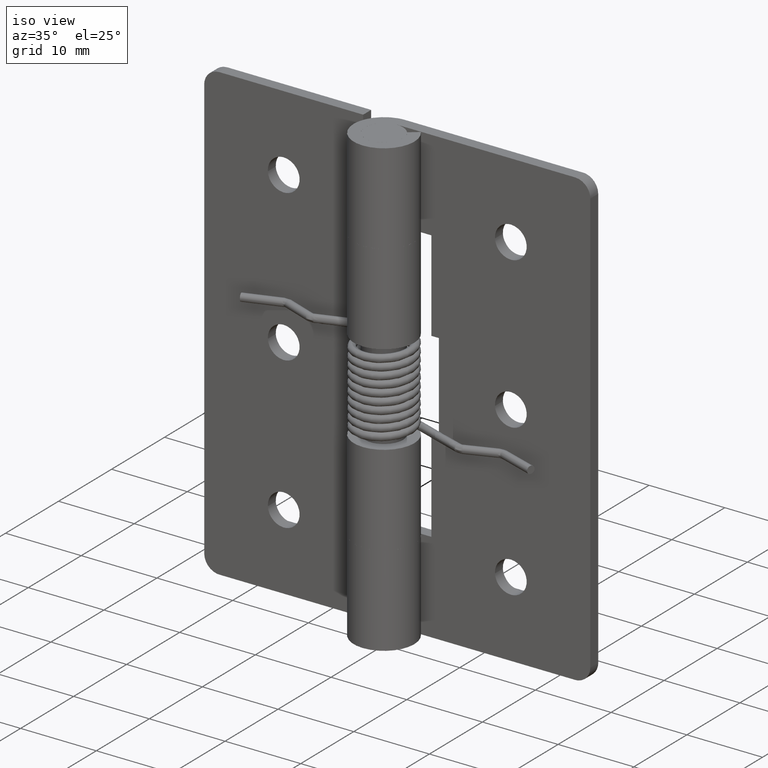
[diagram: clean part render]
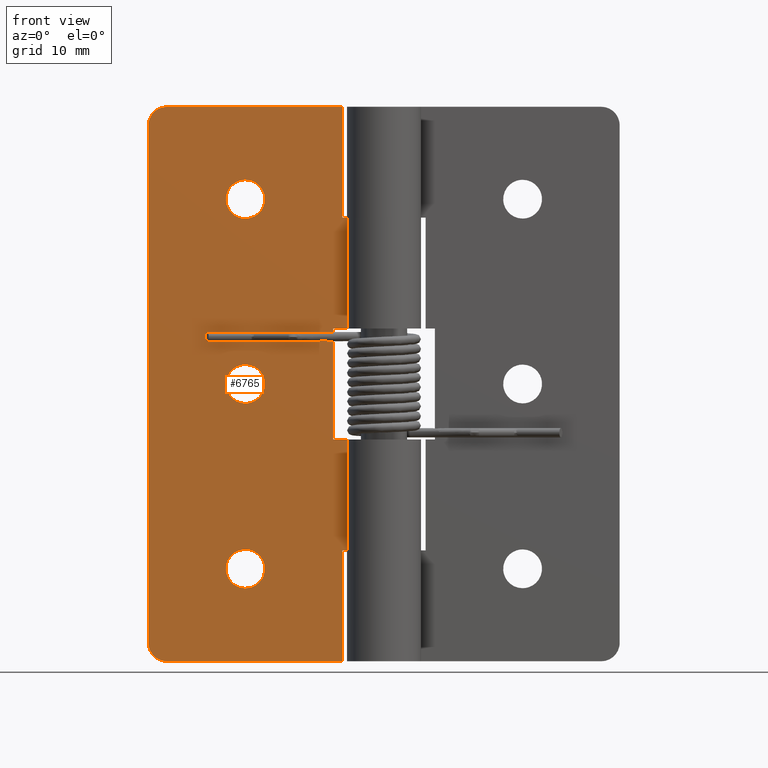
[diagram: tour spotlight — one face highlighted and labeled with its STEP entity id]
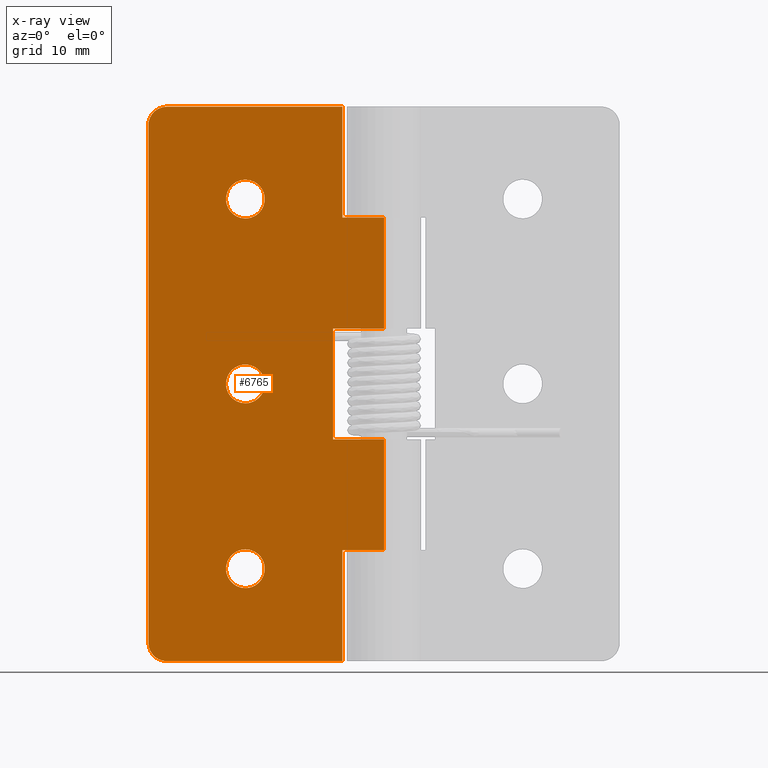
[diagram: x-ray of the same camera — body ghosted, this tour face saturated]
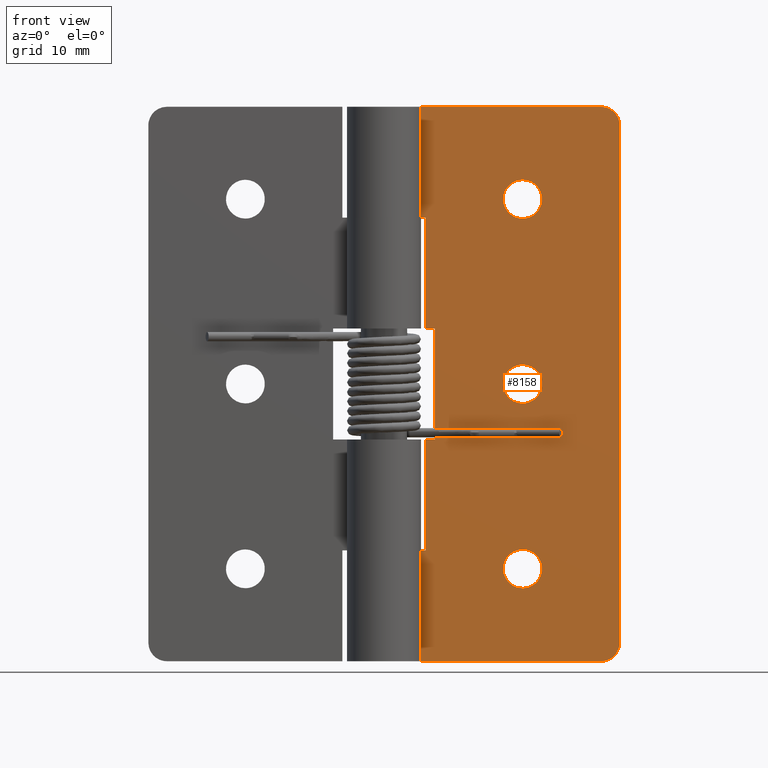
[diagram: tour spotlight — one face highlighted and labeled with its STEP entity id]
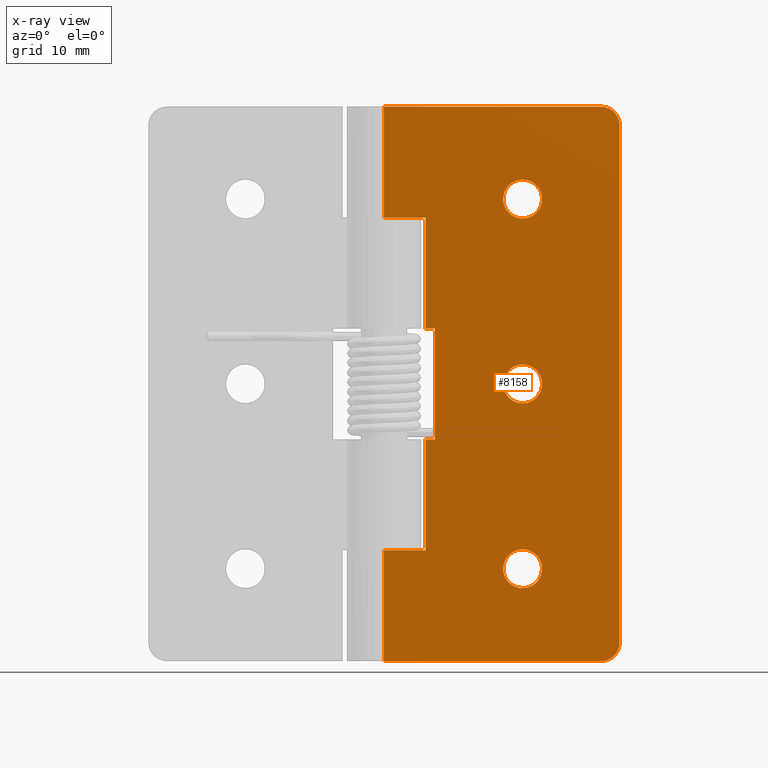
[diagram: x-ray of the same camera — body ghosted, this tour face saturated]
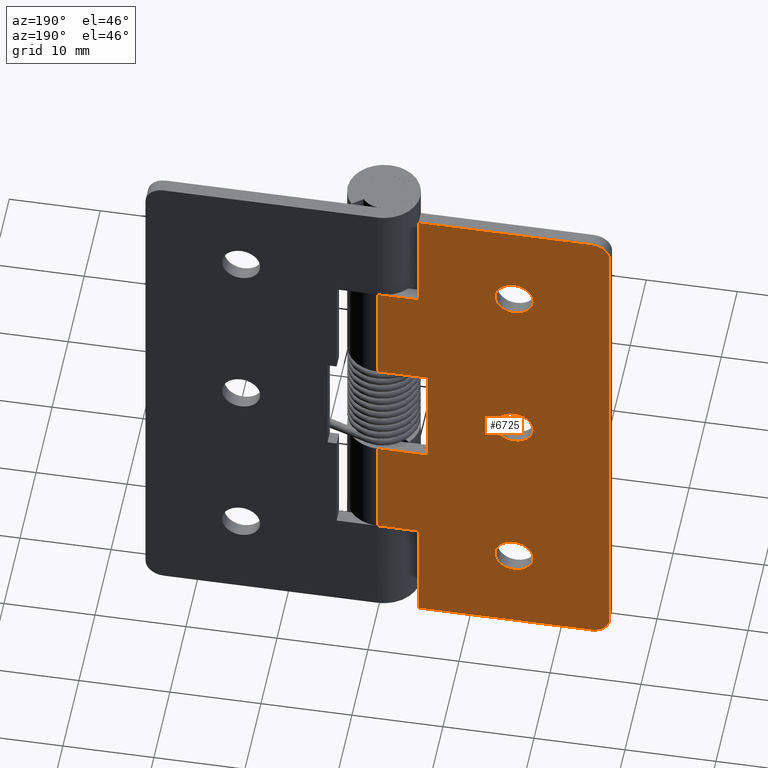
[diagram: tour spotlight — one face highlighted and labeled with its STEP entity id]
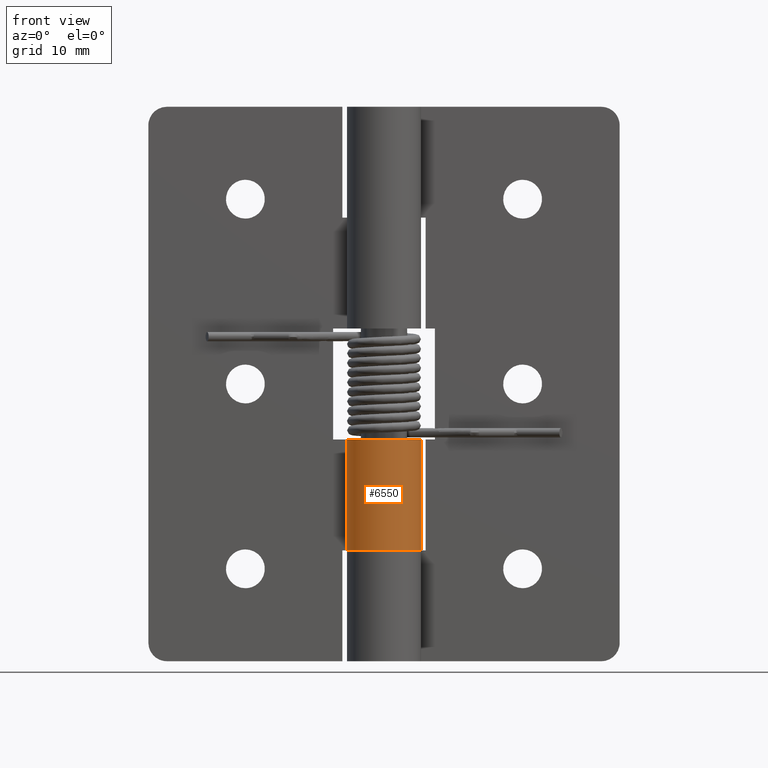
[diagram: tour spotlight — one face highlighted and labeled with its STEP entity id]
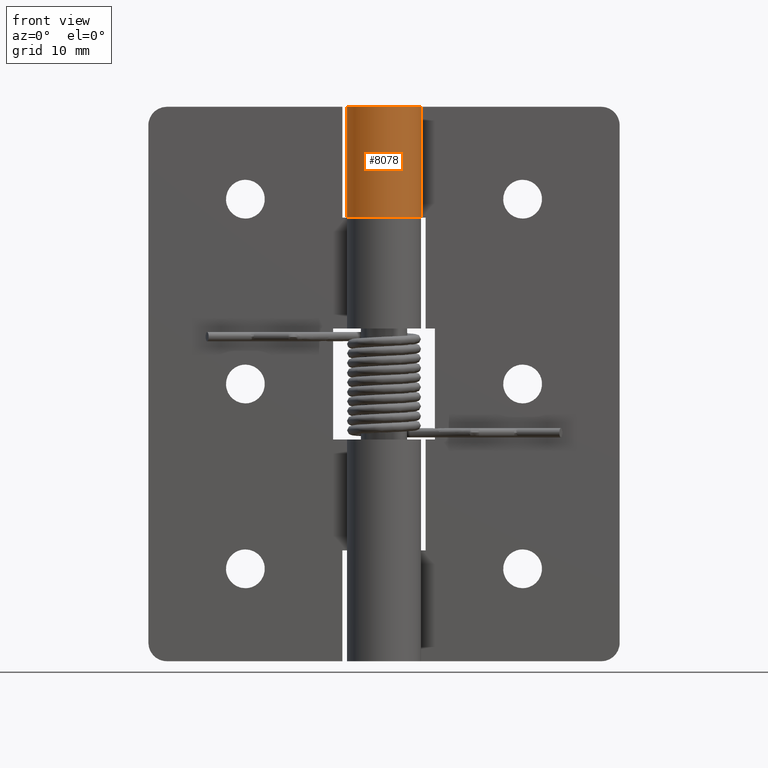
[diagram: tour spotlight — one face highlighted and labeled with its STEP entity id]
A machine part: a face-by-face anatomy tour. The part has 86 B-rep faces; the first image is the clean iso view, then the 5 largest visible faces are spotlighted one at a time (largest first), each with its STEP entity span.

Face 1 — front view, entity #6765. An x-ray twin of the same camera follows (body ghosted, this face saturated) — the face is partly hidden behind the body. In plain terms, the highlighted face is a freeform B-spline surface patch.
Definition (entity closure, byte-faithful):
#5434=CARTESIAN_POINT('',(-17.096083314877561,2.500000000000000,9.871801961494359));
#5435=VERTEX_POINT('',#5434);
#5441=CARTESIAN_POINT('',(-15.0,2.500000000000000,7.900000000000000));
#5442=VERTEX_POINT('',#5441);
#5443=CARTESIAN_POINT('',(-15.0,2.500000000000000,7.900000000000000));
#5444=CARTESIAN_POINT('',(-16.975486417806074,2.499999999999999,7.900000000000001));
#5445=CARTESIAN_POINT('',(-17.096083314877554,2.500000000000000,9.871801961494359));
#5453=(BOUNDED_CURVE()B_SPLINE_CURVE(2,(#5443,#5444,#5445),.UNSPECIFIED.,.F.,.U.)B_SPLINE_CURVE_WITH_KNOTS((3,3),(0.500000000000000,0.739333282833585),.UNSPECIFIED.)CURVE()GEOMETRIC_REPRESENTATION_ITEM()RATIONAL_B_SPLINE_CURVE((1.0,0.719603617686723,0.976072728763028))REPRESENTATION_ITEM(''));
#5454=EDGE_CURVE('',#5442,#5435,#5453,.T.);
#5456=CARTESIAN_POINT('',(-12.914679994656741,2.500000000000000,10.247871892951160));
#5457=VERTEX_POINT('',#5456);
#5458=CARTESIAN_POINT('',(-12.914679994656739,2.500000000000000,10.247871892951158));
#5459=CARTESIAN_POINT('',(-12.900000000000000,2.500000000000000,10.124370651442796));
#5460=CARTESIAN_POINT('',(-12.900000000000000,2.500000000000000,10.0));
#5461=CARTESIAN_POINT('',(-12.900000000000002,2.500000000000000,7.900000000000000));
#5462=CARTESIAN_POINT('',(-15.0,2.500000000000000,7.900000000000000));
#5470=(BOUNDED_CURVE()B_SPLINE_CURVE(2,(#5458,#5459,#5460,#5461,#5462),.UNSPECIFIED.,.F.,.U.)B_SPLINE_CURVE_WITH_KNOTS((3,2,3),(0.229562473487771,0.250000000000000,0.500000000000000),.UNSPECIFIED.)CURVE()GEOMETRIC_REPRESENTATION_ITEM()RATIONAL_B_SPLINE_CURVE((0.956026754133252,0.976055948300991,1.0,0.707106781186548,1.0))REPRESENTATION_ITEM(''));
#5471=EDGE_CURVE('',#5457,#5442,#5470,.T.);
#5515=CARTESIAN_POINT('',(-15.0,2.500000000000000,12.100000000000000));
#5516=VERTEX_POINT('',#5515);
#5517=CARTESIAN_POINT('',(-15.0,2.500000000000000,12.100000000000000));
#5518=CARTESIAN_POINT('',(-13.134833495811916,2.500000000000000,12.099999999999996));
#5519=CARTESIAN_POINT('',(-12.914679994656741,2.500000000000000,10.247871892951158));
#5527=(BOUNDED_CURVE()B_SPLINE_CURVE(2,(#5517,#5518,#5519),.UNSPECIFIED.,.F.,.U.)B_SPLINE_CURVE_WITH_KNOTS((3,3),(0.0,0.229562473487771),.UNSPECIFIED.)CURVE()GEOMETRIC_REPRESENTATION_ITEM()RATIONAL_B_SPLINE_CURVE((1.0,0.731050832885556,0.956026754133252))REPRESENTATION_ITEM(''));
#5528=EDGE_CURVE('',#5516,#5457,#5527,.T.);
#5530=CARTESIAN_POINT('',(-17.096083314877554,2.500000000000000,9.871801961494359));
#5531=CARTESIAN_POINT('',(-17.099999999999998,2.500000000000000,9.935841149791390));
#5532=CARTESIAN_POINT('',(-17.100000000000001,2.500000000000000,10.0));
#5533=CARTESIAN_POINT('',(-17.099999999999994,2.500000000000000,12.099999999999998));
#5534=CARTESIAN_POINT('',(-15.0,2.500000000000000,12.100000000000000));
#5542=(BOUNDED_CURVE()B_SPLINE_CURVE(2,(#5530,#5531,#5532,#5533,#5534),.UNSPECIFIED.,.F.,.U.)B_SPLINE_CURVE_WITH_KNOTS((3,2,3),(0.739333282833585,0.750000000000000,1.0),.UNSPECIFIED.)CURVE()GEOMETRIC_REPRESENTATION_ITEM()RATIONAL_B_SPLINE_CURVE((0.976072728763028,0.987503163499825,1.0,0.707106781186548,1.0))REPRESENTATION_ITEM(''));
#5543=EDGE_CURVE('',#5435,#5516,#5542,.T.);
#5624=CARTESIAN_POINT('',(-17.096083314877561,2.500000000000000,29.871786961494362));
#5625=VERTEX_POINT('',#5624);
#5631=CARTESIAN_POINT('',(-15.0,2.500000000000000,27.899985000000001));
#5632=VERTEX_POINT('',#5631);
#5633=CARTESIAN_POINT('',(-15.0,2.500000000000000,27.899985000000001));
#5634=CARTESIAN_POINT('',(-16.975486417806067,2.500000000000000,27.899984999999997));
#5635=CARTESIAN_POINT('',(-17.096083314877561,2.500000000000000,29.871786961494362));
#5643=(BOUNDED_CURVE()B_SPLINE_CURVE(2,(#5633,#5634,#5635),.UNSPECIFIED.,.F.,.U.)B_SPLINE_CURVE_WITH_KNOTS((3,3),(0.500000000000000,0.739333282833585),.UNSPECIFIED.)CURVE()GEOMETRIC_REPRESENTATION_ITEM()RATIONAL_B_SPLINE_CURVE((1.0,0.719603617686723,0.976072728763027))REPRESENTATION_ITEM(''));
#5644=EDGE_CURVE('',#5632,#5625,#5643,.T.);
#5646=CARTESIAN_POINT('',(-12.914679994656741,2.500000000000000,30.247856892951159));
#5647=VERTEX_POINT('',#5646);
#5648=CARTESIAN_POINT('',(-12.914679994656744,2.500000000000000,30.247856892951155));
#5649=CARTESIAN_POINT('',(-12.900000000000004,2.500000000000000,30.124355651442794));
#5650=CARTESIAN_POINT('',(-12.900000000000000,2.500000000000000,29.999984999999999));
#5651=CARTESIAN_POINT('',(-12.900000000000002,2.500000000000000,27.899985000000001));
#5652=CARTESIAN_POINT('',(-15.0,2.500000000000000,27.899985000000001));
#5660=(BOUNDED_CURVE()B_SPLINE_CURVE(2,(#5648,#5649,#5650,#5651,#5652),.UNSPECIFIED.,.F.,.U.)B_SPLINE_CURVE_WITH_KNOTS((3,2,3),(0.229562473487770,0.250000000000000,0.500000000000000),.UNSPECIFIED.)CURVE()GEOMETRIC_REPRESENTATION_ITEM()RATIONAL_B_SPLINE_CURVE((0.956026754133252,0.976055948300991,1.0,0.707106781186548,1.0))REPRESENTATION_ITEM(''));
#5661=EDGE_CURVE('',#5647,#5632,#5660,.T.);
#5705=CARTESIAN_POINT('',(-15.0,2.500000000000000,32.099984999999997));
#5706=VERTEX_POINT('',#5705);
#5707=CARTESIAN_POINT('',(-15.0,2.500000000000000,32.099984999999997));
#5708=CARTESIAN_POINT('',(-13.134833495811916,2.500000000000000,32.099984999999997));
#5709=CARTESIAN_POINT('',(-12.914679994656741,2.500000000000000,30.247856892951159));
#5717=(BOUNDED_CURVE()B_SPLINE_CURVE(2,(#5707,#5708,#5709),.UNSPECIFIED.,.F.,.U.)B_SPLINE_CURVE_WITH_KNOTS((3,3),(0.0,0.229562473487771),.UNSPECIFIED.)CURVE()GEOMETRIC_REPRESENTATION_ITEM()RATIONAL_B_SPLINE_CURVE((1.0,0.731050832885556,0.956026754133252))REPRESENTATION_ITEM(''));
#5718=EDGE_CURVE('',#5706,#5647,#5717,.T.);
#5720=CARTESIAN_POINT('',(-17.096083314877554,2.500000000000000,29.871786961494358));
#5721=CARTESIAN_POINT('',(-17.100000000000005,2.500000000000000,29.935826149791389));
#5722=CARTESIAN_POINT('',(-17.100000000000001,2.500000000000000,29.999984999999999));
#5723=CARTESIAN_POINT('',(-17.099999999999994,2.500000000000000,32.099985000000004));
#5724=CARTESIAN_POINT('',(-15.0,2.500000000000000,32.099984999999997));
#5732=(BOUNDED_CURVE()B_SPLINE_CURVE(2,(#5720,#5721,#5722,#5723,#5724),.UNSPECIFIED.,.F.,.U.)B_SPLINE_CURVE_WITH_KNOTS((3,2,3),(0.739333282833585,0.750000000000000,1.0),.UNSPECIFIED.)CURVE()GEOMETRIC_REPRESENTATION_ITEM()RATIONAL_B_SPLINE_CURVE((0.976072728763027,0.987503163499824,1.0,0.707106781186548,1.0))REPRESENTATION_ITEM(''));
#5733=EDGE_CURVE('',#5625,#5706,#5732,.T.);
#5814=CARTESIAN_POINT('',(-17.096083314877561,2.500000000000000,49.871786961494351));
#5815=VERTEX_POINT('',#5814);
#5821=CARTESIAN_POINT('',(-15.0,2.500000000000000,47.899985000000001));
#5822=VERTEX_POINT('',#5821);
#5823=CARTESIAN_POINT('',(-15.0,2.500000000000000,47.899985000000001));
#5824=CARTESIAN_POINT('',(-16.975486417806071,2.500000000000000,47.899985000000001));
#5825=CARTESIAN_POINT('',(-17.096083314877554,2.500000000000000,49.871786961494351));
#5833=(BOUNDED_CURVE()B_SPLINE_CURVE(2,(#5823,#5824,#5825),.UNSPECIFIED.,.F.,.U.)B_SPLINE_CURVE_WITH_KNOTS((3,3),(0.500000000000000,0.739333282833585),.UNSPECIFIED.)CURVE()GEOMETRIC_REPRESENTATION_ITEM()RATIONAL_B_SPLINE_CURVE((1.0,0.719603617686724,0.976072728763026))REPRESENTATION_ITEM(''));
#5834=EDGE_CURVE('',#5822,#5815,#5833,.T.);
#5836=CARTESIAN_POINT('',(-12.914679994656741,2.500000000000000,50.247856892951148));
#5837=VERTEX_POINT('',#5836);
#5838=CARTESIAN_POINT('',(-12.914679994656741,2.500000000000000,50.247856892951148));
#5839=CARTESIAN_POINT('',(-12.900000000000002,2.500000000000000,50.124355651442791));
#5840=CARTESIAN_POINT('',(-12.900000000000000,2.500000000000000,49.999985000000002));
#5841=CARTESIAN_POINT('',(-12.900000000000002,2.500000000000000,47.899985000000015));
#5842=CARTESIAN_POINT('',(-15.0,2.500000000000000,47.899985000000001));
#5850=(BOUNDED_CURVE()B_SPLINE_CURVE(2,(#5838,#5839,#5840,#5841,#5842),.UNSPECIFIED.,.F.,.U.)B_SPLINE_CURVE_WITH_KNOTS((3,2,3),(0.229562473487771,0.250000000000000,0.500000000000000),.UNSPECIFIED.)CURVE()GEOMETRIC_REPRESENTATION_ITEM()RATIONAL_B_SPLINE_CURVE((0.956026754133252,0.976055948300991,1.0,0.707106781186548,1.0))REPRESENTATION_ITEM(''));
#5851=EDGE_CURVE('',#5837,#5822,#5850,.T.);
#5895=CARTESIAN_POINT('',(-15.0,2.500000000000000,52.099984999999997));
#5896=VERTEX_POINT('',#5895);
#5897=CARTESIAN_POINT('',(-15.0,2.500000000000000,52.099984999999997));
#5898=CARTESIAN_POINT('',(-13.134833495811916,2.500000000000000,52.099984999999990));
#5899=CARTESIAN_POINT('',(-12.914679994656741,2.500000000000000,50.247856892951148));
#5907=(BOUNDED_CURVE()B_SPLINE_CURVE(2,(#5897,#5898,#5899),.UNSPECIFIED.,.F.,.U.)B_SPLINE_CURVE_WITH_KNOTS((3,3),(0.0,0.229562473487771),.UNSPECIFIED.)CURVE()GEOMETRIC_REPRESENTATION_ITEM()RATIONAL_B_SPLINE_CURVE((1.0,0.731050832885556,0.956026754133252))REPRESENTATION_ITEM(''));
#5908=EDGE_CURVE('',#5896,#5837,#5907,.T.);
#5910=CARTESIAN_POINT('',(-17.096083314877557,2.500000000000000,49.871786961494351));
#5911=CARTESIAN_POINT('',(-17.100000000000005,2.500000000000001,49.935826149791389));
#5912=CARTESIAN_POINT('',(-17.100000000000001,2.500000000000000,49.999985000000002));
#5913=CARTESIAN_POINT('',(-17.099999999999994,2.500000000000000,52.099984999999990));
#5914=CARTESIAN_POINT('',(-15.0,2.500000000000000,52.099984999999997));
#5922=(BOUNDED_CURVE()B_SPLINE_CURVE(2,(#5910,#5911,#5912,#5913,#5914),.UNSPECIFIED.,.F.,.U.)B_SPLINE_CURVE_WITH_KNOTS((3,2,3),(0.739333282833585,0.750000000000000,1.0),.UNSPECIFIED.)CURVE()GEOMETRIC_REPRESENTATION_ITEM()RATIONAL_B_SPLINE_CURVE((0.976072728763027,0.987503163499824,1.0,0.707106781186548,1.0))REPRESENTATION_ITEM(''));
#5923=EDGE_CURVE('',#5815,#5896,#5922,.T.);
#5951=CARTESIAN_POINT('',(-5.500000000000000,2.499999999999945,23.999984999999999));
#5952=VERTEX_POINT('',#5951);
#5965=CARTESIAN_POINT('',(-5.500000000000000,2.499999999999945,35.999985000000002));
#5966=VERTEX_POINT('',#5965);
#5972=CARTESIAN_POINT('',(-5.500000000000000,2.499999999999945,23.999984999999999));
#5973=CARTESIAN_POINT('',(-5.500000000000000,2.499999999999945,35.999985000000002));
#5974=QUASI_UNIFORM_CURVE('',1,(#5972,#5973),.UNSPECIFIED.,.F.,.U.);
#5975=EDGE_CURVE('',#5952,#5966,#5974,.T.);
#5987=CARTESIAN_POINT('',(0.0,2.500000000000000,23.999984999999999));
#5988=VERTEX_POINT('',#5987);
#6042=CARTESIAN_POINT('',(0.0,2.500000000000000,23.999984999999999));
#6043=CARTESIAN_POINT('',(-5.500000000000000,2.499999999999945,23.999984999999999));
#6044=QUASI_UNIFORM_CURVE('',1,(#6042,#6043),.UNSPECIFIED.,.F.,.U.);
#6045=EDGE_CURVE('',#5988,#5952,#6044,.T.);
#6091=CARTESIAN_POINT('',(0.0,2.500000000000000,35.999985000000002));
#6092=VERTEX_POINT('',#6091);
#6112=CARTESIAN_POINT('',(-5.500000000000000,2.499999999999945,35.999985000000002));
#6113=CARTESIAN_POINT('',(0.0,2.500000000000000,35.999985000000002));
#6114=QUASI_UNIFORM_CURVE('',1,(#6112,#6113),.UNSPECIFIED.,.F.,.U.);
#6115=EDGE_CURVE('',#5966,#6092,#6114,.T.);
#6125=CARTESIAN_POINT('',(-4.500000000000000,2.499999999999945,59.999985000000002));
#6126=VERTEX_POINT('',#6125);
#6127=CARTESIAN_POINT('',(-4.500000000000000,2.499999999999945,47.999985000000002));
#6128=VERTEX_POINT('',#6127);
#6129=CARTESIAN_POINT('',(-4.500000000000000,2.499999999999945,59.999985000000002));
#6130=CARTESIAN_POINT('',(-4.500000000000000,2.499999999999945,47.999985000000002));
#6131=QUASI_UNIFORM_CURVE('',1,(#6129,#6130),.UNSPECIFIED.,.F.,.U.);
#6132=EDGE_CURVE('',#6126,#6128,#6131,.T.);
#6161=CARTESIAN_POINT('',(0.0,2.500000000000000,47.999985000000002));
#6162=VERTEX_POINT('',#6161);
#6163=CARTESIAN_POINT('',(-4.500000000000000,2.499999999999945,47.999985000000002));
#6164=CARTESIAN_POINT('',(0.0,2.500000000000000,47.999985000000002));
#6165=QUASI_UNIFORM_CURVE('',1,(#6163,#6164),.UNSPECIFIED.,.F.,.U.);
#6166=EDGE_CURVE('',#6128,#6162,#6165,.T.);
#6231=CARTESIAN_POINT('',(-4.500000000000000,2.499999999999945,12.0));
#6232=VERTEX_POINT('',#6231);
#6233=CARTESIAN_POINT('',(-4.500000000000000,2.499999999999945,0.0));
#6234=VERTEX_POINT('',#6233);
#6235=CARTESIAN_POINT('',(-4.500000000000000,2.499999999999945,12.0));
#6236=CARTESIAN_POINT('',(-4.500000000000000,2.499999999999945,0.0));
#6237=QUASI_UNIFORM_CURVE('',1,(#6235,#6236),.UNSPECIFIED.,.F.,.U.);
#6238=EDGE_CURVE('',#6232,#6234,#6237,.T.);
#6267=CARTESIAN_POINT('',(0.0,2.500000000000000,12.0));
#6268=VERTEX_POINT('',#6267);
#6269=CARTESIAN_POINT('',(0.0,2.500000000000000,12.0));
#6270=CARTESIAN_POINT('',(-4.500000000000000,2.499999999999945,12.0));
#6271=QUASI_UNIFORM_CURVE('',1,(#6269,#6270),.UNSPECIFIED.,.F.,.U.);
#6272=EDGE_CURVE('',#6268,#6232,#6271,.T.);
#6346=CARTESIAN_POINT('',(-23.500000000000000,2.500000000000000,59.999985000000002));
#6347=VERTEX_POINT('',#6346);
#6348=CARTESIAN_POINT('',(-25.500000000000000,2.499999999999945,57.999985000000002));
#6349=VERTEX_POINT('',#6348);
#6350=CARTESIAN_POINT('',(-23.500000000000000,2.499999999999945,59.999985000000002));
#6351=CARTESIAN_POINT('',(-25.500000000000007,2.499999999999945,59.999985000000002));
#6352=CARTESIAN_POINT('',(-25.500000000000000,2.499999999999945,57.999985000000002));
#6360=(BOUNDED_CURVE()B_SPLINE_CURVE(2,(#6350,#6351,#6352),.UNSPECIFIED.,.F.,.U.)CURVE()GEOMETRIC_REPRESENTATION_ITEM()QUASI_UNIFORM_CURVE()RATIONAL_B_SPLINE_CURVE((1.0,0.707106781186548,1.0))REPRESENTATION_ITEM(''));
#6361=EDGE_CURVE('',#6347,#6349,#6360,.T.);
#6407=CARTESIAN_POINT('',(-25.500000000000000,2.499999999999945,2.0));
#6408=VERTEX_POINT('',#6407);
#6409=CARTESIAN_POINT('',(-23.500000000000000,2.499999999999945,0.0));
#6410=VERTEX_POINT('',#6409);
#6411=CARTESIAN_POINT('',(-25.500000000000000,2.499999999999945,2.0));
#6412=CARTESIAN_POINT('',(-25.500000000000007,2.499999999999945,0.0));
#6413=CARTESIAN_POINT('',(-23.500000000000000,2.499999999999945,0.0));
#6421=(BOUNDED_CURVE()B_SPLINE_CURVE(2,(#6411,#6412,#6413),.UNSPECIFIED.,.F.,.U.)CURVE()GEOMETRIC_REPRESENTATION_ITEM()QUASI_UNIFORM_CURVE()RATIONAL_B_SPLINE_CURVE((1.0,0.707106781186548,1.0))REPRESENTATION_ITEM(''));
#6422=EDGE_CURVE('',#6408,#6410,#6421,.T.);
#6460=CARTESIAN_POINT('',(-23.500000000000000,2.499999999999945,0.0));
#6461=CARTESIAN_POINT('',(-4.500000000000000,2.499999999999945,0.0));
#6462=QUASI_UNIFORM_CURVE('',1,(#6460,#6461),.UNSPECIFIED.,.F.,.U.);
#6463=EDGE_CURVE('',#6410,#6234,#6462,.T.);
#6486=CARTESIAN_POINT('',(-25.500000000000000,2.499999999999945,2.0));
#6487=CARTESIAN_POINT('',(-25.500000000000000,2.499999999999945,57.999985000000002));
#6488=QUASI_UNIFORM_CURVE('',1,(#6486,#6487),.UNSPECIFIED.,.F.,.U.);
#6489=EDGE_CURVE('',#6408,#6349,#6488,.T.);
#6499=CARTESIAN_POINT('',(-23.500000000000000,2.500000000000000,59.999985000000002));
#6500=CARTESIAN_POINT('',(-4.500000000000000,2.499999999999945,59.999985000000002));
#6501=QUASI_UNIFORM_CURVE('',1,(#6499,#6500),.UNSPECIFIED.,.F.,.U.);
#6502=EDGE_CURVE('',#6347,#6126,#6501,.T.);
#6644=CARTESIAN_POINT('',(0.0,2.500000000000000,12.0));
#6645=CARTESIAN_POINT('',(0.0,2.500000000000000,23.999984999999999));
#6646=QUASI_UNIFORM_CURVE('',1,(#6644,#6645),.UNSPECIFIED.,.F.,.U.);
#6647=EDGE_CURVE('',#6268,#5988,#6646,.T.);
#6675=CARTESIAN_POINT('',(0.0,2.500000000000000,35.999985000000002));
#6676=CARTESIAN_POINT('',(0.0,2.500000000000000,47.999985000000002));
#6677=QUASI_UNIFORM_CURVE('',1,(#6675,#6676),.UNSPECIFIED.,.F.,.U.);
#6678=EDGE_CURVE('',#6092,#6162,#6677,.T.);
#6726=CARTESIAN_POINT('',(-26.773724950576060,2.500000000000000,62.996984134458387));
#6727=CARTESIAN_POINT('',(-26.773724950576060,2.500000000000000,-2.997000743783390));
#6728=CARTESIAN_POINT('',(1.273725634539348,2.500000000000000,62.996984134458387));
#6729=CARTESIAN_POINT('',(1.273725634539348,2.500000000000000,-2.997000743783390));
#6730=B_SPLINE_SURFACE_WITH_KNOTS('',1,1,((#6726,#6728),(#6727,#6729)),.UNSPECIFIED.,.F.,.F.,.U.,(2,2),(2,2),(0.0,65.993984878241776),(0.0,28.047450585115410),.UNSPECIFIED.);
#6731=ORIENTED_EDGE('',*,*,#5975,.T.);
#6732=ORIENTED_EDGE('',*,*,#6115,.T.);
#6733=ORIENTED_EDGE('',*,*,#6678,.T.);
#6734=ORIENTED_EDGE('',*,*,#6166,.F.);
#6735=ORIENTED_EDGE('',*,*,#6132,.F.);
#6736=ORIENTED_EDGE('',*,*,#6502,.F.);
#6737=ORIENTED_EDGE('',*,*,#6361,.T.);
#6738=ORIENTED_EDGE('',*,*,#6489,.F.);
#6739=ORIENTED_EDGE('',*,*,#6422,.T.);
#6740=ORIENTED_EDGE('',*,*,#6463,.T.);
#6741=ORIENTED_EDGE('',*,*,#6238,.F.);
#6742=ORIENTED_EDGE('',*,*,#6272,.F.);
#6743=ORIENTED_EDGE('',*,*,#6647,.T.);
#6744=ORIENTED_EDGE('',*,*,#6045,.T.);
#6745=EDGE_LOOP('',(#6731,#6732,#6733,#6734,#6735,#6736,#6737,#6738,#6739,#6740,#6741,#6742,#6743,#6744));
#6746=FACE_OUTER_BOUND('',#6745,.T.);
#6747=ORIENTED_EDGE('',*,*,#5834,.T.);
#6748=ORIENTED_EDGE('',*,*,#5923,.T.);
#6749=ORIENTED_EDGE('',*,*,#5908,.T.);
#6750=ORIENTED_EDGE('',*,*,#5851,.T.);
#6751=EDGE_LOOP('',(#6747,#6748,#6749,#6750));
#6752=FACE_BOUND('',#6751,.T.);
#6753=ORIENTED_EDGE('',*,*,#5644,.T.);
#6754=ORIENTED_EDGE('',*,*,#5733,.T.);
#6755=ORIENTED_EDGE('',*,*,#5718,.T.);
#6756=ORIENTED_EDGE('',*,*,#5661,.T.);
#6757=EDGE_LOOP('',(#6753,#6754,#6755,#6756));
#6758=FACE_BOUND('',#6757,.T.);
#6759=ORIENTED_EDGE('',*,*,#5454,.T.);
#6760=ORIENTED_EDGE('',*,*,#5543,.T.);
#6761=ORIENTED_EDGE('',*,*,#5528,.T.);
#6762=ORIENTED_EDGE('',*,*,#5471,.T.);
#6763=EDGE_LOOP('',(#6759,#6760,#6761,#6762));
#6764=FACE_BOUND('',#6763,.T.);
#6765=ADVANCED_FACE('',(#6746,#6752,#6758,#6764),#6730,.T.);

Face 2 — front view, entity #8158. An x-ray twin of the same camera follows (body ghosted, this face saturated) — the face is partly hidden behind the body. In plain terms, the highlighted face is a freeform B-spline surface patch.
Definition (entity closure, byte-faithful):
#6833=CARTESIAN_POINT('',(17.085320005343259,2.500000000000000,10.247871892951160));
#6834=VERTEX_POINT('',#6833);
#6835=CARTESIAN_POINT('',(15.0,2.500000000000000,7.900000000000000));
#6836=VERTEX_POINT('',#6835);
#6837=CARTESIAN_POINT('',(17.085320005343259,2.500000000000000,10.247871892951157));
#6838=CARTESIAN_POINT('',(17.099999999999998,2.500000000000000,10.124370651442796));
#6839=CARTESIAN_POINT('',(17.100000000000001,2.500000000000000,10.0));
#6840=CARTESIAN_POINT('',(17.099999999999994,2.500000000000000,7.900000000000000));
#6841=CARTESIAN_POINT('',(15.0,2.500000000000000,7.900000000000000));
#6849=(BOUNDED_CURVE()B_SPLINE_CURVE(2,(#6837,#6838,#6839,#6840,#6841),.UNSPECIFIED.,.F.,.U.)B_SPLINE_CURVE_WITH_KNOTS((3,2,3),(0.229562473487771,0.250000000000000,0.500000000000000),.UNSPECIFIED.)CURVE()GEOMETRIC_REPRESENTATION_ITEM()RATIONAL_B_SPLINE_CURVE((0.956026754133252,0.976055948300991,1.0,0.707106781186548,1.0))REPRESENTATION_ITEM(''));
#6850=EDGE_CURVE('',#6834,#6836,#6849,.T.);
#6891=CARTESIAN_POINT('',(12.903916923314600,2.500000000000000,9.871798066968374));
#6892=VERTEX_POINT('',#6891);
#6898=CARTESIAN_POINT('',(15.0,2.500000000000000,7.900000000000000));
#6899=CARTESIAN_POINT('',(13.024517259513949,2.500000000000000,7.900000000000000));
#6900=CARTESIAN_POINT('',(12.903916923314599,2.500000000000001,9.871798066968374));
#6908=(BOUNDED_CURVE()B_SPLINE_CURVE(2,(#6898,#6899,#6900),.UNSPECIFIED.,.F.,.U.)B_SPLINE_CURVE_WITH_KNOTS((3,3),(0.500000000000000,0.739332962240582),.UNSPECIFIED.)CURVE()GEOMETRIC_REPRESENTATION_ITEM()RATIONAL_B_SPLINE_CURVE((1.0,0.719603993284790,0.976072041670230))REPRESENTATION_ITEM(''));
#6909=EDGE_CURVE('',#6836,#6892,#6908,.T.);
#6932=CARTESIAN_POINT('',(15.0,2.500000000000000,12.100000000000000));
#6933=VERTEX_POINT('',#6932);
#6934=CARTESIAN_POINT('',(15.0,2.500000000000000,12.100000000000000));
#6935=CARTESIAN_POINT('',(16.865166504188078,2.500000000000001,12.099999999999998));
#6936=CARTESIAN_POINT('',(17.085320005343263,2.500000000000000,10.247871892951157));
#6944=(BOUNDED_CURVE()B_SPLINE_CURVE(2,(#6934,#6935,#6936),.UNSPECIFIED.,.F.,.U.)B_SPLINE_CURVE_WITH_KNOTS((3,3),(0.0,0.229562473487771),.UNSPECIFIED.)CURVE()GEOMETRIC_REPRESENTATION_ITEM()RATIONAL_B_SPLINE_CURVE((1.0,0.731050832885556,0.956026754133252))REPRESENTATION_ITEM(''));
#6945=EDGE_CURVE('',#6933,#6834,#6944,.T.);
#6947=CARTESIAN_POINT('',(12.903916923314595,2.500000000000000,9.871798066968374));
#6948=CARTESIAN_POINT('',(12.900000000000000,2.500000000000000,9.935839197064514));
#6949=CARTESIAN_POINT('',(12.900000000000000,2.500000000000000,10.0));
#6950=CARTESIAN_POINT('',(12.900000000000002,2.500000000000000,12.099999999999998));
#6951=CARTESIAN_POINT('',(15.0,2.500000000000000,12.100000000000000));
#6959=(BOUNDED_CURVE()B_SPLINE_CURVE(2,(#6947,#6948,#6949,#6950,#6951),.UNSPECIFIED.,.F.,.U.)B_SPLINE_CURVE_WITH_KNOTS((3,2,3),(0.739332962240581,0.750000000000000,1.0),.UNSPECIFIED.)CURVE()GEOMETRIC_REPRESENTATION_ITEM()RATIONAL_B_SPLINE_CURVE((0.976072041670228,0.987502787901757,1.0,0.707106781186548,1.0))REPRESENTATION_ITEM(''));
#6960=EDGE_CURVE('',#6892,#6933,#6959,.T.);
#7023=CARTESIAN_POINT('',(17.085320005343259,2.500000000000000,30.247856892951159));
#7024=VERTEX_POINT('',#7023);
#7025=CARTESIAN_POINT('',(15.0,2.500000000000000,27.899985000000001));
#7026=VERTEX_POINT('',#7025);
#7027=CARTESIAN_POINT('',(17.085320005343259,2.500000000000000,30.247856892951159));
#7028=CARTESIAN_POINT('',(17.099999999999998,2.500000000000000,30.124355651442798));
#7029=CARTESIAN_POINT('',(17.100000000000001,2.500000000000000,29.999984999999999));
#7030=CARTESIAN_POINT('',(17.099999999999994,2.500000000000000,27.899985000000001));
#7031=CARTESIAN_POINT('',(15.0,2.500000000000000,27.899985000000001));
#7039=(BOUNDED_CURVE()B_SPLINE_CURVE(2,(#7027,#7028,#7029,#7030,#7031),.UNSPECIFIED.,.F.,.U.)B_SPLINE_CURVE_WITH_KNOTS((3,2,3),(0.229562473487771,0.250000000000000,0.500000000000000),.UNSPECIFIED.)CURVE()GEOMETRIC_REPRESENTATION_ITEM()RATIONAL_B_SPLINE_CURVE((0.956026754133252,0.976055948300991,1.0,0.707106781186548,1.0))REPRESENTATION_ITEM(''));
#7040=EDGE_CURVE('',#7024,#7026,#7039,.T.);
#7081=CARTESIAN_POINT('',(12.903916923314600,2.500000000000000,29.871783066968369));
#7082=VERTEX_POINT('',#7081);
#7088=CARTESIAN_POINT('',(15.0,2.500000000000000,27.899985000000001));
#7089=CARTESIAN_POINT('',(13.024517259513949,2.500000000000000,27.899984999999994));
#7090=CARTESIAN_POINT('',(12.903916923314599,2.500000000000001,29.871783066968366));
#7098=(BOUNDED_CURVE()B_SPLINE_CURVE(2,(#7088,#7089,#7090),.UNSPECIFIED.,.F.,.U.)B_SPLINE_CURVE_WITH_KNOTS((3,3),(0.500000000000000,0.739332962240582),.UNSPECIFIED.)CURVE()GEOMETRIC_REPRESENTATION_ITEM()RATIONAL_B_SPLINE_CURVE((1.0,0.719603993284790,0.976072041670230))REPRESENTATION_ITEM(''));
#7099=EDGE_CURVE('',#7026,#7082,#7098,.T.);
#7122=CARTESIAN_POINT('',(15.0,2.500000000000000,32.099984999999997));
#7123=VERTEX_POINT('',#7122);
#7124=CARTESIAN_POINT('',(15.0,2.500000000000000,32.099984999999997));
#7125=CARTESIAN_POINT('',(16.865166504188078,2.500000000000000,32.099984999999997));
#7126=CARTESIAN_POINT('',(17.085320005343263,2.500000000000000,30.247856892951159));
#7134=(BOUNDED_CURVE()B_SPLINE_CURVE(2,(#7124,#7125,#7126),.UNSPECIFIED.,.F.,.U.)B_SPLINE_CURVE_WITH_KNOTS((3,3),(0.0,0.229562473487771),.UNSPECIFIED.)CURVE()GEOMETRIC_REPRESENTATION_ITEM()RATIONAL_B_SPLINE_CURVE((1.0,0.731050832885556,0.956026754133252))REPRESENTATION_ITEM(''));
#7135=EDGE_CURVE('',#7123,#7024,#7134,.T.);
#7137=CARTESIAN_POINT('',(12.903916923314593,2.500000000000000,29.871783066968366));
#7138=CARTESIAN_POINT('',(12.899999999999995,2.500000000000000,29.935824197064505));
#7139=CARTESIAN_POINT('',(12.900000000000000,2.500000000000000,29.999984999999999));
#7140=CARTESIAN_POINT('',(12.900000000000002,2.500000000000000,32.099985000000004));
#7141=CARTESIAN_POINT('',(15.0,2.500000000000000,32.099984999999997));
#7149=(BOUNDED_CURVE()B_SPLINE_CURVE(2,(#7137,#7138,#7139,#7140,#7141),.UNSPECIFIED.,.F.,.U.)B_SPLINE_CURVE_WITH_KNOTS((3,2,3),(0.739332962240581,0.750000000000000,1.0),.UNSPECIFIED.)CURVE()GEOMETRIC_REPRESENTATION_ITEM()RATIONAL_B_SPLINE_CURVE((0.976072041670228,0.987502787901756,1.0,0.707106781186548,1.0))REPRESENTATION_ITEM(''));
#7150=EDGE_CURVE('',#7082,#7123,#7149,.T.);
#7213=CARTESIAN_POINT('',(17.085320005343259,2.500000000000000,50.247856892951148));
#7214=VERTEX_POINT('',#7213);
#7215=CARTESIAN_POINT('',(15.0,2.500000000000000,47.899985000000001));
#7216=VERTEX_POINT('',#7215);
#7217=CARTESIAN_POINT('',(17.085320005343259,2.500000000000000,50.247856892951155));
#7218=CARTESIAN_POINT('',(17.099999999999994,2.499999999999999,50.124355651442798));
#7219=CARTESIAN_POINT('',(17.100000000000001,2.500000000000000,49.999985000000002));
#7220=CARTESIAN_POINT('',(17.099999999999994,2.500000000000000,47.899985000000015));
#7221=CARTESIAN_POINT('',(15.0,2.500000000000000,47.899985000000001));
#7229=(BOUNDED_CURVE()B_SPLINE_CURVE(2,(#7217,#7218,#7219,#7220,#7221),.UNSPECIFIED.,.F.,.U.)B_SPLINE_CURVE_WITH_KNOTS((3,2,3),(0.229562473487771,0.250000000000000,0.500000000000000),.UNSPECIFIED.)CURVE()GEOMETRIC_REPRESENTATION_ITEM()RATIONAL_B_SPLINE_CURVE((0.956026754133252,0.976055948300992,1.0,0.707106781186548,1.0))REPRESENTATION_ITEM(''));
#7230=EDGE_CURVE('',#7214,#7216,#7229,.T.);
#7271=CARTESIAN_POINT('',(12.903916923314600,2.500000000000000,49.871783066968383));
#7272=VERTEX_POINT('',#7271);
#7278=CARTESIAN_POINT('',(15.0,2.500000000000000,47.899985000000001));
#7279=CARTESIAN_POINT('',(13.024517259513949,2.500000000000000,47.899985000000015));
#7280=CARTESIAN_POINT('',(12.903916923314599,2.500000000000001,49.871783066968369));
#7288=(BOUNDED_CURVE()B_SPLINE_CURVE(2,(#7278,#7279,#7280),.UNSPECIFIED.,.F.,.U.)B_SPLINE_CURVE_WITH_KNOTS((3,3),(0.500000000000000,0.739332962240582),.UNSPECIFIED.)CURVE()GEOMETRIC_REPRESENTATION_ITEM()RATIONAL_B_SPLINE_CURVE((1.0,0.719603993284790,0.976072041670230))REPRESENTATION_ITEM(''));
#7289=EDGE_CURVE('',#7216,#7272,#7288,.T.);
#7312=CARTESIAN_POINT('',(15.0,2.500000000000000,52.099984999999997));
#7313=VERTEX_POINT('',#7312);
#7314=CARTESIAN_POINT('',(15.0,2.500000000000000,52.099984999999997));
#7315=CARTESIAN_POINT('',(16.865166504188078,2.500000000000000,52.099984999999982));
#7316=CARTESIAN_POINT('',(17.085320005343259,2.500000000000000,50.247856892951155));
#7324=(BOUNDED_CURVE()B_SPLINE_CURVE(2,(#7314,#7315,#7316),.UNSPECIFIED.,.F.,.U.)B_SPLINE_CURVE_WITH_KNOTS((3,3),(0.0,0.229562473487771),.UNSPECIFIED.)CURVE()GEOMETRIC_REPRESENTATION_ITEM()RATIONAL_B_SPLINE_CURVE((1.0,0.731050832885556,0.956026754133252))REPRESENTATION_ITEM(''));
#7325=EDGE_CURVE('',#7313,#7214,#7324,.T.);
#7327=CARTESIAN_POINT('',(12.903916923314595,2.500000000000000,49.871783066968376));
#7328=CARTESIAN_POINT('',(12.900000000000000,2.500000000000000,49.935824197064512));
#7329=CARTESIAN_POINT('',(12.900000000000000,2.500000000000000,49.999985000000002));
#7330=CARTESIAN_POINT('',(12.900000000000002,2.500000000000000,52.099984999999990));
#7331=CARTESIAN_POINT('',(15.0,2.500000000000000,52.099984999999997));
#7339=(BOUNDED_CURVE()B_SPLINE_CURVE(2,(#7327,#7328,#7329,#7330,#7331),.UNSPECIFIED.,.F.,.U.)B_SPLINE_CURVE_WITH_KNOTS((3,2,3),(0.739332962240581,0.750000000000000,1.0),.UNSPECIFIED.)CURVE()GEOMETRIC_REPRESENTATION_ITEM()RATIONAL_B_SPLINE_CURVE((0.976072041670228,0.987502787901757,1.0,0.707106781186548,1.0))REPRESENTATION_ITEM(''));
#7340=EDGE_CURVE('',#7272,#7313,#7339,.T.);
#7382=CARTESIAN_POINT('',(4.499999999999799,2.499999999999945,23.999984999999999));
#7383=VERTEX_POINT('',#7382);
#7384=CARTESIAN_POINT('',(5.499999999999799,2.499999999999945,23.999984999999999));
#7385=VERTEX_POINT('',#7384);
#7386=CARTESIAN_POINT('',(4.499999999999799,2.499999999999945,23.999984999999999));
#7387=CARTESIAN_POINT('',(5.499999999999799,2.499999999999945,23.999984999999999));
#7388=QUASI_UNIFORM_CURVE('',1,(#7386,#7387),.UNSPECIFIED.,.F.,.U.);
#7389=EDGE_CURVE('',#7383,#7385,#7388,.T.);
#7418=CARTESIAN_POINT('',(5.499999999999799,2.499999999999945,35.999985000000002));
#7419=VERTEX_POINT('',#7418);
#7420=CARTESIAN_POINT('',(4.499999999999799,2.499999999999945,35.999985000000002));
#7421=VERTEX_POINT('',#7420);
#7422=CARTESIAN_POINT('',(5.499999999999799,2.499999999999945,35.999985000000002));
#7423=CARTESIAN_POINT('',(4.499999999999799,2.499999999999945,35.999985000000002));
#7424=QUASI_UNIFORM_CURVE('',1,(#7422,#7423),.UNSPECIFIED.,.F.,.U.);
#7425=EDGE_CURVE('',#7419,#7421,#7424,.T.);
#7454=CARTESIAN_POINT('',(5.499999999999799,2.499999999999945,23.999984999999999));
#7455=CARTESIAN_POINT('',(5.499999999999799,2.499999999999945,35.999985000000002));
#7456=QUASI_UNIFORM_CURVE('',1,(#7454,#7455),.UNSPECIFIED.,.F.,.U.);
#7457=EDGE_CURVE('',#7385,#7419,#7456,.T.);
#7474=CARTESIAN_POINT('',(0.0,2.500000000000000,12.0));
#7475=VERTEX_POINT('',#7474);
#7476=CARTESIAN_POINT('',(4.499999999999799,2.499999999999945,12.0));
#7477=VERTEX_POINT('',#7476);
#7478=CARTESIAN_POINT('',(0.0,2.500000000000000,12.0));
#7479=CARTESIAN_POINT('',(4.499999999999799,2.499999999999945,12.0));
#7480=QUASI_UNIFORM_CURVE('',1,(#7478,#7479),.UNSPECIFIED.,.F.,.U.);
#7481=EDGE_CURVE('',#7475,#7477,#7480,.T.);
#7582=CARTESIAN_POINT('',(4.499999999999799,2.499999999999945,47.999985000000002));
#7583=VERTEX_POINT('',#7582);
#7589=CARTESIAN_POINT('',(0.0,2.500000000000000,47.999985000000002));
#7590=VERTEX_POINT('',#7589);
#7591=CARTESIAN_POINT('',(4.499999999999799,2.499999999999945,47.999985000000002));
#7592=CARTESIAN_POINT('',(0.0,2.500000000000000,47.999985000000002));
#7593=QUASI_UNIFORM_CURVE('',1,(#7591,#7592),.UNSPECIFIED.,.F.,.U.);
#7594=EDGE_CURVE('',#7583,#7590,#7593,.T.);
#7639=CARTESIAN_POINT('',(23.500000000000000,2.499999999999945,59.999985000000002));
#7640=VERTEX_POINT('',#7639);
#7641=CARTESIAN_POINT('',(25.500000000000000,2.499999999999945,57.999985000000002));
#7642=VERTEX_POINT('',#7641);
#7643=CARTESIAN_POINT('',(23.500000000000000,2.499999999999945,59.999985000000002));
#7644=CARTESIAN_POINT('',(25.500000000000007,2.499999999999945,59.999985000000002));
#7645=CARTESIAN_POINT('',(25.500000000000000,2.499999999999945,57.999985000000002));
#7653=(BOUNDED_CURVE()B_SPLINE_CURVE(2,(#7643,#7644,#7645),.UNSPECIFIED.,.F.,.U.)CURVE()GEOMETRIC_REPRESENTATION_ITEM()QUASI_UNIFORM_CURVE()RATIONAL_B_SPLINE_CURVE((1.0,0.707106781186548,1.0))REPRESENTATION_ITEM(''));
#7654=EDGE_CURVE('',#7640,#7642,#7653,.T.);
#7700=CARTESIAN_POINT('',(25.500000000000000,2.499999999999945,2.0));
#7701=VERTEX_POINT('',#7700);
#7702=CARTESIAN_POINT('',(23.500000000000000,2.500000000000000,0.0));
#7703=VERTEX_POINT('',#7702);
#7704=CARTESIAN_POINT('',(25.500000000000000,2.499999999999945,2.0));
#7705=CARTESIAN_POINT('',(25.500000000000007,2.499999999999945,0.0));
#7706=CARTESIAN_POINT('',(23.500000000000000,2.500000000000000,0.0));
#7714=(BOUNDED_CURVE()B_SPLINE_CURVE(2,(#7704,#7705,#7706),.UNSPECIFIED.,.F.,.U.)CURVE()GEOMETRIC_REPRESENTATION_ITEM()QUASI_UNIFORM_CURVE()RATIONAL_B_SPLINE_CURVE((1.0,0.707106781186548,1.0))REPRESENTATION_ITEM(''));
#7715=EDGE_CURVE('',#7701,#7703,#7714,.T.);
#7752=CARTESIAN_POINT('',(0.0,2.500000000000000,59.999985000000002));
#7753=VERTEX_POINT('',#7752);
#7754=CARTESIAN_POINT('',(23.500000000000000,2.499999999999945,59.999985000000002));
#7755=CARTESIAN_POINT('',(0.0,2.500000000000000,59.999985000000002));
#7756=QUASI_UNIFORM_CURVE('',1,(#7754,#7755),.UNSPECIFIED.,.F.,.U.);
#7757=EDGE_CURVE('',#7640,#7753,#7756,.T.);
#7823=CARTESIAN_POINT('',(0.0,2.500000000000000,0.0));
#7824=VERTEX_POINT('',#7823);
#7825=CARTESIAN_POINT('',(23.500000000000000,2.500000000000000,0.0));
#7826=CARTESIAN_POINT('',(0.0,2.500000000000000,0.0));
#7827=QUASI_UNIFORM_CURVE('',1,(#7825,#7826),.UNSPECIFIED.,.F.,.U.);
#7828=EDGE_CURVE('',#7703,#7824,#7827,.T.);
#7898=CARTESIAN_POINT('',(25.500000000000000,2.499999999999945,2.0));
#7899=CARTESIAN_POINT('',(25.500000000000000,2.499999999999945,57.999985000000002));
#7900=QUASI_UNIFORM_CURVE('',1,(#7898,#7899),.UNSPECIFIED.,.F.,.U.);
#7901=EDGE_CURVE('',#7701,#7642,#7900,.T.);
#7969=CARTESIAN_POINT('',(0.0,2.500000000000000,0.0));
#7970=CARTESIAN_POINT('',(0.0,2.500000000000000,12.0));
#7971=QUASI_UNIFORM_CURVE('',1,(#7969,#7970),.UNSPECIFIED.,.F.,.U.);
#7972=EDGE_CURVE('',#7824,#7475,#7971,.T.);
#8004=CARTESIAN_POINT('',(0.0,2.500000000000000,47.999985000000002));
#8005=CARTESIAN_POINT('',(0.0,2.500000000000000,59.999985000000002));
#8006=QUASI_UNIFORM_CURVE('',1,(#8004,#8005),.UNSPECIFIED.,.F.,.U.);
#8007=EDGE_CURVE('',#7590,#7753,#8006,.T.);
#8084=CARTESIAN_POINT('',(4.499999999999799,2.499999999999945,12.0));
#8085=CARTESIAN_POINT('',(4.499999999999799,2.499999999999945,23.999984999999999));
#8086=QUASI_UNIFORM_CURVE('',1,(#8084,#8085),.UNSPECIFIED.,.F.,.U.);
#8087=EDGE_CURVE('',#7477,#7383,#8086,.T.);
#8110=CARTESIAN_POINT('',(4.499999999999799,2.499999999999945,35.999985000000002));
#8111=CARTESIAN_POINT('',(4.499999999999799,2.499999999999945,47.999985000000002));
#8112=QUASI_UNIFORM_CURVE('',1,(#8110,#8111),.UNSPECIFIED.,.F.,.U.);
#8113=EDGE_CURVE('',#7421,#7583,#8112,.T.);
#8119=CARTESIAN_POINT('',(-1.273724950576050,2.500000000000000,-2.996999134458385));
#8120=CARTESIAN_POINT('',(-1.273724950576050,2.500000000000000,62.996985743783391));
#8121=CARTESIAN_POINT('',(26.773725634539360,2.500000000000000,-2.996999134458385));
#8122=CARTESIAN_POINT('',(26.773725634539360,2.500000000000000,62.996985743783391));
#8123=B_SPLINE_SURFACE_WITH_KNOTS('',1,1,((#8119,#8121),(#8120,#8122)),.UNSPECIFIED.,.F.,.F.,.U.,(2,2),(2,2),(0.0,65.993984878241776),(0.0,28.047450585115410),.UNSPECIFIED.);
#8124=ORIENTED_EDGE('',*,*,#7425,.F.);
#8125=ORIENTED_EDGE('',*,*,#7457,.F.);
#8126=ORIENTED_EDGE('',*,*,#7389,.F.);
#8127=ORIENTED_EDGE('',*,*,#8087,.F.);
#8128=ORIENTED_EDGE('',*,*,#7481,.F.);
#8129=ORIENTED_EDGE('',*,*,#7972,.F.);
#8130=ORIENTED_EDGE('',*,*,#7828,.F.);
#8131=ORIENTED_EDGE('',*,*,#7715,.F.);
#8132=ORIENTED_EDGE('',*,*,#7901,.T.);
#8133=ORIENTED_EDGE('',*,*,#7654,.F.);
#8134=ORIENTED_EDGE('',*,*,#7757,.T.);
#8135=ORIENTED_EDGE('',*,*,#8007,.F.);
#8136=ORIENTED_EDGE('',*,*,#7594,.F.);
#8137=ORIENTED_EDGE('',*,*,#8113,.F.);
#8138=EDGE_LOOP('',(#8124,#8125,#8126,#8127,#8128,#8129,#8130,#8131,#8132,#8133,#8134,#8135,#8136,#8137));
#8139=FACE_OUTER_BOUND('',#8138,.T.);
#8140=ORIENTED_EDGE('',*,*,#7289,.T.);
#8141=ORIENTED_EDGE('',*,*,#7340,.T.);
#8142=ORIENTED_EDGE('',*,*,#7325,.T.);
#8143=ORIENTED_EDGE('',*,*,#7230,.T.);
#8144=EDGE_LOOP('',(#8140,#8141,#8142,#8143));
#8145=FACE_BOUND('',#8144,.T.);
#8146=ORIENTED_EDGE('',*,*,#7099,.T.);
#8147=ORIENTED_EDGE('',*,*,#7150,.T.);
#8148=ORIENTED_EDGE('',*,*,#7135,.T.);
#8149=ORIENTED_EDGE('',*,*,#7040,.T.);
#8150=EDGE_LOOP('',(#8146,#8147,#8148,#8149));
#8151=FACE_BOUND('',#8150,.T.);
#8152=ORIENTED_EDGE('',*,*,#6909,.T.);
#8153=ORIENTED_EDGE('',*,*,#6960,.T.);
#8154=ORIENTED_EDGE('',*,*,#6945,.T.);
#8155=ORIENTED_EDGE('',*,*,#6850,.T.);
#8156=EDGE_LOOP('',(#8152,#8153,#8154,#8155));
#8157=FACE_BOUND('',#8156,.T.);
#8158=ADVANCED_FACE('',(#8139,#8145,#8151,#8157),#8123,.F.);

Face 3 — auxiliary view, entity #6725. In plain terms, the highlighted face is a freeform B-spline surface patch.
Definition (entity closure, byte-faithful):
#5400=CARTESIAN_POINT('',(-12.914679994656741,4.0,10.247871892951160));
#5401=VERTEX_POINT('',#5400);
#5402=CARTESIAN_POINT('',(-15.0,4.0,7.900000000000000));
#5403=VERTEX_POINT('',#5402);
#5404=CARTESIAN_POINT('',(-12.914679994656739,4.000000000000000,10.247871892951157));
#5405=CARTESIAN_POINT('',(-12.900000000000000,4.0,10.124370651442794));
#5406=CARTESIAN_POINT('',(-12.900000000000000,4.0,10.0));
#5407=CARTESIAN_POINT('',(-12.900000000000002,4.000000000000000,7.900000000000000));
#5408=CARTESIAN_POINT('',(-15.0,4.0,7.900000000000000));
#5416=(BOUNDED_CURVE()B_SPLINE_CURVE(2,(#5404,#5405,#5406,#5407,#5408),.UNSPECIFIED.,.F.,.U.)B_SPLINE_CURVE_WITH_KNOTS((3,2,3),(0.229562473487771,0.250000000000000,0.500000000000000),.UNSPECIFIED.)CURVE()GEOMETRIC_REPRESENTATION_ITEM()RATIONAL_B_SPLINE_CURVE((0.956026754133252,0.976055948300992,1.0,0.707106781186548,1.0))REPRESENTATION_ITEM(''));
#5417=EDGE_CURVE('',#5401,#5403,#5416,.T.);
#5419=CARTESIAN_POINT('',(-17.096083076685410,4.0,9.871798066968371));
#5420=VERTEX_POINT('',#5419);
#5421=CARTESIAN_POINT('',(-15.0,4.0,7.900000000000000));
#5422=CARTESIAN_POINT('',(-16.975482740486033,4.0,7.900000000000001));
#5423=CARTESIAN_POINT('',(-17.096083076685410,4.0,9.871798066968371));
#5431=(BOUNDED_CURVE()B_SPLINE_CURVE(2,(#5421,#5422,#5423),.UNSPECIFIED.,.F.,.U.)B_SPLINE_CURVE_WITH_KNOTS((3,3),(0.500000000000000,0.739332962240579),.UNSPECIFIED.)CURVE()GEOMETRIC_REPRESENTATION_ITEM()RATIONAL_B_SPLINE_CURVE((1.0,0.719603993284793,0.976072041670225))REPRESENTATION_ITEM(''));
#5432=EDGE_CURVE('',#5403,#5420,#5431,.T.);
#5499=CARTESIAN_POINT('',(-15.0,4.0,12.100000000000000));
#5500=VERTEX_POINT('',#5499);
#5501=CARTESIAN_POINT('',(-15.0,4.0,12.100000000000000));
#5502=CARTESIAN_POINT('',(-13.134833495811916,4.000000000000001,12.099999999999998));
#5503=CARTESIAN_POINT('',(-12.914679994656739,4.000000000000000,10.247871892951157));
#5511=(BOUNDED_CURVE()B_SPLINE_CURVE(2,(#5501,#5502,#5503),.UNSPECIFIED.,.F.,.U.)B_SPLINE_CURVE_WITH_KNOTS((3,3),(0.0,0.229562473487771),.UNSPECIFIED.)CURVE()GEOMETRIC_REPRESENTATION_ITEM()RATIONAL_B_SPLINE_CURVE((1.0,0.731050832885556,0.956026754133252))REPRESENTATION_ITEM(''));
#5512=EDGE_CURVE('',#5500,#5401,#5511,.T.);
#5546=CARTESIAN_POINT('',(-17.096083076685407,4.000000000000000,9.871798066968371));
#5547=CARTESIAN_POINT('',(-17.100000000000009,4.0,9.935839197064508));
#5548=CARTESIAN_POINT('',(-17.100000000000001,4.0,10.0));
#5549=CARTESIAN_POINT('',(-17.099999999999994,4.000000000000000,12.099999999999998));
#5550=CARTESIAN_POINT('',(-15.0,4.0,12.100000000000000));
#5558=(BOUNDED_CURVE()B_SPLINE_CURVE(2,(#5546,#5547,#5548,#5549,#5550),.UNSPECIFIED.,.F.,.U.)B_SPLINE_CURVE_WITH_KNOTS((3,2,3),(0.739332962240580,0.750000000000000,1.0),.UNSPECIFIED.)CURVE()GEOMETRIC_REPRESENTATION_ITEM()RATIONAL_B_SPLINE_CURVE((0.976072041670227,0.987502787901756,1.0,0.707106781186548,1.0))REPRESENTATION_ITEM(''));
#5559=EDGE_CURVE('',#5420,#5500,#5558,.T.);
#5590=CARTESIAN_POINT('',(-12.914679994656741,4.0,30.247856892951159));
#5591=VERTEX_POINT('',#5590);
#5592=CARTESIAN_POINT('',(-15.0,4.0,27.899985000000001));
#5593=VERTEX_POINT('',#5592);
#5594=CARTESIAN_POINT('',(-12.914679994656739,4.000000000000000,30.247856892951159));
#5595=CARTESIAN_POINT('',(-12.900000000000000,4.000000000000001,30.124355651442798));
#5596=CARTESIAN_POINT('',(-12.900000000000000,4.0,29.999984999999999));
#5597=CARTESIAN_POINT('',(-12.900000000000002,4.000000000000000,27.899985000000001));
#5598=CARTESIAN_POINT('',(-15.0,4.0,27.899985000000001));
#5606=(BOUNDED_CURVE()B_SPLINE_CURVE(2,(#5594,#5595,#5596,#5597,#5598),.UNSPECIFIED.,.F.,.U.)B_SPLINE_CURVE_WITH_KNOTS((3,2,3),(0.229562473487771,0.250000000000000,0.500000000000000),.UNSPECIFIED.)CURVE()GEOMETRIC_REPRESENTATION_ITEM()RATIONAL_B_SPLINE_CURVE((0.956026754133252,0.976055948300991,1.0,0.707106781186548,1.0))REPRESENTATION_ITEM(''));
#5607=EDGE_CURVE('',#5591,#5593,#5606,.T.);
#5609=CARTESIAN_POINT('',(-17.096083076685410,4.0,29.871783066968369));
#5610=VERTEX_POINT('',#5609);
#5611=CARTESIAN_POINT('',(-15.0,4.0,27.899985000000001));
#5612=CARTESIAN_POINT('',(-16.975482740486033,4.0,27.899984999999994));
#5613=CARTESIAN_POINT('',(-17.096083076685410,4.0,29.871783066968369));
#5621=(BOUNDED_CURVE()B_SPLINE_CURVE(2,(#5611,#5612,#5613),.UNSPECIFIED.,.F.,.U.)B_SPLINE_CURVE_WITH_KNOTS((3,3),(0.500000000000000,0.739332962240579),.UNSPECIFIED.)CURVE()GEOMETRIC_REPRESENTATION_ITEM()RATIONAL_B_SPLINE_CURVE((1.0,0.719603993284793,0.976072041670225))REPRESENTATION_ITEM(''));
#5622=EDGE_CURVE('',#5593,#5610,#5621,.T.);
#5689=CARTESIAN_POINT('',(-15.0,4.0,32.099984999999997));
#5690=VERTEX_POINT('',#5689);
#5691=CARTESIAN_POINT('',(-15.0,4.0,32.099984999999997));
#5692=CARTESIAN_POINT('',(-13.134833495811916,4.0,32.099984999999997));
#5693=CARTESIAN_POINT('',(-12.914679994656741,4.000000000000000,30.247856892951159));
#5701=(BOUNDED_CURVE()B_SPLINE_CURVE(2,(#5691,#5692,#5693),.UNSPECIFIED.,.F.,.U.)B_SPLINE_CURVE_WITH_KNOTS((3,3),(0.0,0.229562473487771),.UNSPECIFIED.)CURVE()GEOMETRIC_REPRESENTATION_ITEM()RATIONAL_B_SPLINE_CURVE((1.0,0.731050832885556,0.956026754133252))REPRESENTATION_ITEM(''));
#5702=EDGE_CURVE('',#5690,#5591,#5701,.T.);
#5736=CARTESIAN_POINT('',(-17.096083076685407,4.000000000000000,29.871783066968369));
#5737=CARTESIAN_POINT('',(-17.100000000000001,4.000000000000001,29.935824197064509));
#5738=CARTESIAN_POINT('',(-17.100000000000001,4.0,29.999984999999999));
#5739=CARTESIAN_POINT('',(-17.099999999999994,4.000000000000000,32.099985000000004));
#5740=CARTESIAN_POINT('',(-15.0,4.0,32.099984999999997));
#5748=(BOUNDED_CURVE()B_SPLINE_CURVE(2,(#5736,#5737,#5738,#5739,#5740),.UNSPECIFIED.,.F.,.U.)B_SPLINE_CURVE_WITH_KNOTS((3,2,3),(0.739332962240580,0.750000000000000,1.0),.UNSPECIFIED.)CURVE()GEOMETRIC_REPRESENTATION_ITEM()RATIONAL_B_SPLINE_CURVE((0.976072041670226,0.987502787901755,1.0,0.707106781186548,1.0))REPRESENTATION_ITEM(''));
#5749=EDGE_CURVE('',#5610,#5690,#5748,.T.);
#5780=CARTESIAN_POINT('',(-12.914679994656741,4.0,50.247856892951148));
#5781=VERTEX_POINT('',#5780);
#5782=CARTESIAN_POINT('',(-15.0,4.0,47.899985000000001));
#5783=VERTEX_POINT('',#5782);
#5784=CARTESIAN_POINT('',(-12.914679994656748,4.000000000000001,50.247856892951148));
#5785=CARTESIAN_POINT('',(-12.900000000000000,4.0,50.124355651442798));
#5786=CARTESIAN_POINT('',(-12.900000000000000,4.0,49.999985000000002));
#5787=CARTESIAN_POINT('',(-12.900000000000002,4.000000000000000,47.899985000000015));
#5788=CARTESIAN_POINT('',(-15.0,4.0,47.899985000000001));
#5796=(BOUNDED_CURVE()B_SPLINE_CURVE(2,(#5784,#5785,#5786,#5787,#5788),.UNSPECIFIED.,.F.,.U.)B_SPLINE_CURVE_WITH_KNOTS((3,2,3),(0.229562473487771,0.250000000000000,0.500000000000000),.UNSPECIFIED.)CURVE()GEOMETRIC_REPRESENTATION_ITEM()RATIONAL_B_SPLINE_CURVE((0.956026754133252,0.976055948300992,1.0,0.707106781186548,1.0))REPRESENTATION_ITEM(''));
#5797=EDGE_CURVE('',#5781,#5783,#5796,.T.);
#5799=CARTESIAN_POINT('',(-17.096083076685410,4.0,49.871783066968362));
#5800=VERTEX_POINT('',#5799);
#5801=CARTESIAN_POINT('',(-15.0,4.0,47.899985000000001));
#5802=CARTESIAN_POINT('',(-16.975482740486033,4.0,47.899985000000015));
#5803=CARTESIAN_POINT('',(-17.096083076685410,4.0,49.871783066968369));
#5811=(BOUNDED_CURVE()B_SPLINE_CURVE(2,(#5801,#5802,#5803),.UNSPECIFIED.,.F.,.U.)B_SPLINE_CURVE_WITH_KNOTS((3,3),(0.500000000000000,0.739332962240579),.UNSPECIFIED.)CURVE()GEOMETRIC_REPRESENTATION_ITEM()RATIONAL_B_SPLINE_CURVE((1.0,0.719603993284793,0.976072041670225))REPRESENTATION_ITEM(''));
#5812=EDGE_CURVE('',#5783,#5800,#5811,.T.);
#5879=CARTESIAN_POINT('',(-15.0,4.0,52.099984999999997));
#5880=VERTEX_POINT('',#5879);
#5881=CARTESIAN_POINT('',(-15.0,4.0,52.099984999999997));
#5882=CARTESIAN_POINT('',(-13.134833495811916,4.000000000000001,52.099984999999982));
#5883=CARTESIAN_POINT('',(-12.914679994656739,4.000000000000000,50.247856892951155));
#5891=(BOUNDED_CURVE()B_SPLINE_CURVE(2,(#5881,#5882,#5883),.UNSPECIFIED.,.F.,.U.)B_SPLINE_CURVE_WITH_KNOTS((3,3),(0.0,0.229562473487771),.UNSPECIFIED.)CURVE()GEOMETRIC_REPRESENTATION_ITEM()RATIONAL_B_SPLINE_CURVE((1.0,0.731050832885556,0.956026754133252))REPRESENTATION_ITEM(''));
#5892=EDGE_CURVE('',#5880,#5781,#5891,.T.);
#5926=CARTESIAN_POINT('',(-17.096083076685407,4.000000000000000,49.871783066968362));
#5927=CARTESIAN_POINT('',(-17.100000000000001,4.000000000000001,49.935824197064498));
#5928=CARTESIAN_POINT('',(-17.100000000000001,4.0,49.999985000000002));
#5929=CARTESIAN_POINT('',(-17.099999999999994,4.000000000000000,52.099984999999990));
#5930=CARTESIAN_POINT('',(-15.0,4.0,52.099984999999997));
#5938=(BOUNDED_CURVE()B_SPLINE_CURVE(2,(#5926,#5927,#5928,#5929,#5930),.UNSPECIFIED.,.F.,.U.)B_SPLINE_CURVE_WITH_KNOTS((3,2,3),(0.739332962240580,0.750000000000000,1.0),.UNSPECIFIED.)CURVE()GEOMETRIC_REPRESENTATION_ITEM()RATIONAL_B_SPLINE_CURVE((0.976072041670226,0.987502787901755,1.0,0.707106781186548,1.0))REPRESENTATION_ITEM(''));
#5939=EDGE_CURVE('',#5800,#5880,#5938,.T.);
#5949=CARTESIAN_POINT('',(-5.500000000000000,4.0,23.999984999999999));
#5950=VERTEX_POINT('',#5949);
#5958=CARTESIAN_POINT('',(-5.500000000000000,4.0,35.999985000000002));
#5959=VERTEX_POINT('',#5958);
#5960=CARTESIAN_POINT('',(-5.500000000000000,4.0,23.999984999999999));
#5961=CARTESIAN_POINT('',(-5.500000000000000,4.0,35.999985000000002));
#5962=QUASI_UNIFORM_CURVE('',1,(#5960,#5961),.UNSPECIFIED.,.F.,.U.);
#5963=EDGE_CURVE('',#5950,#5959,#5962,.T.);
#6015=CARTESIAN_POINT('',(0.0,4.0,23.999984999999999));
#6016=VERTEX_POINT('',#6015);
#6036=CARTESIAN_POINT('',(0.0,4.0,23.999984999999999));
#6037=CARTESIAN_POINT('',(-5.500000000000000,4.0,23.999984999999999));
#6038=QUASI_UNIFORM_CURVE('',1,(#6036,#6037),.UNSPECIFIED.,.F.,.U.);
#6039=EDGE_CURVE('',#6016,#5950,#6038,.T.);
#6056=CARTESIAN_POINT('',(0.0,4.0,35.999985000000002));
#6057=VERTEX_POINT('',#6056);
#6058=CARTESIAN_POINT('',(-5.500000000000000,4.0,35.999985000000002));
#6059=CARTESIAN_POINT('',(0.0,4.0,35.999985000000002));
#6060=QUASI_UNIFORM_CURVE('',1,(#6058,#6059),.UNSPECIFIED.,.F.,.U.);
#6061=EDGE_CURVE('',#5959,#6057,#6060,.T.);
#6134=CARTESIAN_POINT('',(-4.500000000000000,4.0,47.999985000000002));
#6135=VERTEX_POINT('',#6134);
#6141=CARTESIAN_POINT('',(-4.500000000000000,4.0,59.999985000000002));
#6142=VERTEX_POINT('',#6141);
#6143=CARTESIAN_POINT('',(-4.500000000000000,4.0,59.999985000000002));
#6144=CARTESIAN_POINT('',(-4.500000000000000,4.0,47.999985000000002));
#6145=QUASI_UNIFORM_CURVE('',1,(#6143,#6144),.UNSPECIFIED.,.F.,.U.);
#6146=EDGE_CURVE('',#6142,#6135,#6145,.T.);
#6196=CARTESIAN_POINT('',(0.0,4.0,47.999985000000002));
#6197=VERTEX_POINT('',#6196);
#6217=CARTESIAN_POINT('',(-4.500000000000000,4.0,47.999985000000002));
#6218=CARTESIAN_POINT('',(0.0,4.0,47.999985000000002));
#6219=QUASI_UNIFORM_CURVE('',1,(#6217,#6218),.UNSPECIFIED.,.F.,.U.);
#6220=EDGE_CURVE('',#6135,#6197,#6219,.T.);
#6240=CARTESIAN_POINT('',(-4.500000000000000,4.0,0.0));
#6241=VERTEX_POINT('',#6240);
#6247=CARTESIAN_POINT('',(-4.500000000000000,4.0,12.0));
#6248=VERTEX_POINT('',#6247);
#6249=CARTESIAN_POINT('',(-4.500000000000000,4.0,12.0));
#6250=CARTESIAN_POINT('',(-4.500000000000000,4.0,0.0));
#6251=QUASI_UNIFORM_CURVE('',1,(#6249,#6250),.UNSPECIFIED.,.F.,.U.);
#6252=EDGE_CURVE('',#6248,#6241,#6251,.T.);
#6275=CARTESIAN_POINT('',(0.0,4.0,12.0));
#6276=VERTEX_POINT('',#6275);
#6277=CARTESIAN_POINT('',(0.0,4.0,12.0));
#6278=CARTESIAN_POINT('',(-4.500000000000000,4.0,12.0));
#6279=QUASI_UNIFORM_CURVE('',1,(#6277,#6278),.UNSPECIFIED.,.F.,.U.);
#6280=EDGE_CURVE('',#6276,#6248,#6279,.T.);
#6363=CARTESIAN_POINT('',(-23.500000000000000,4.0,59.999985000000002));
#6364=VERTEX_POINT('',#6363);
#6370=CARTESIAN_POINT('',(-25.500000000000000,4.0,57.999985000000002));
#6371=VERTEX_POINT('',#6370);
#6372=CARTESIAN_POINT('',(-23.500000000000000,4.0,59.999985000000002));
#6373=CARTESIAN_POINT('',(-25.500000000000007,4.000000000000000,59.999985000000002));
#6374=CARTESIAN_POINT('',(-25.500000000000000,4.0,57.999985000000002));
#6382=(BOUNDED_CURVE()B_SPLINE_CURVE(2,(#6372,#6373,#6374),.UNSPECIFIED.,.F.,.U.)CURVE()GEOMETRIC_REPRESENTATION_ITEM()QUASI_UNIFORM_CURVE()RATIONAL_B_SPLINE_CURVE((1.0,0.707106781186548,1.0))REPRESENTATION_ITEM(''));
#6383=EDGE_CURVE('',#6364,#6371,#6382,.T.);
#6424=CARTESIAN_POINT('',(-25.500000000000000,4.0,2.0));
#6425=VERTEX_POINT('',#6424);
#6431=CARTESIAN_POINT('',(-23.500000000000000,4.0,0.0));
#6432=VERTEX_POINT('',#6431);
#6433=CARTESIAN_POINT('',(-25.500000000000000,4.0,2.0));
#6434=CARTESIAN_POINT('',(-25.500000000000007,4.000000000000000,0.0));
#6435=CARTESIAN_POINT('',(-23.500000000000000,4.0,0.0));
#6443=(BOUNDED_CURVE()B_SPLINE_CURVE(2,(#6433,#6434,#6435),.UNSPECIFIED.,.F.,.U.)CURVE()GEOMETRIC_REPRESENTATION_ITEM()QUASI_UNIFORM_CURVE()RATIONAL_B_SPLINE_CURVE((1.0,0.707106781186548,1.0))REPRESENTATION_ITEM(''));
#6444=EDGE_CURVE('',#6425,#6432,#6443,.T.);
#6466=CARTESIAN_POINT('',(-4.500000000000000,4.0,0.0));
#6467=CARTESIAN_POINT('',(-23.500000000000000,4.0,0.0));
#6468=QUASI_UNIFORM_CURVE('',1,(#6466,#6467),.UNSPECIFIED.,.F.,.U.);
#6469=EDGE_CURVE('',#6241,#6432,#6468,.T.);
#6480=CARTESIAN_POINT('',(-25.500000000000000,4.0,2.0));
#6481=CARTESIAN_POINT('',(-25.500000000000000,4.0,57.999985000000002));
#6482=QUASI_UNIFORM_CURVE('',1,(#6480,#6481),.UNSPECIFIED.,.F.,.U.);
#6483=EDGE_CURVE('',#6425,#6371,#6482,.T.);
#6505=CARTESIAN_POINT('',(-4.500000000000000,4.0,59.999985000000002));
#6506=CARTESIAN_POINT('',(-23.500000000000000,4.0,59.999985000000002));
#6507=QUASI_UNIFORM_CURVE('',1,(#6505,#6506),.UNSPECIFIED.,.F.,.U.);
#6508=EDGE_CURVE('',#6142,#6364,#6507,.T.);
#6543=CARTESIAN_POINT('',(0.0,4.0,12.0));
#6544=CARTESIAN_POINT('',(0.0,4.0,23.999984999999999));
#6545=QUASI_UNIFORM_CURVE('',1,(#6543,#6544),.UNSPECIFIED.,.F.,.U.);
#6546=EDGE_CURVE('',#6276,#6016,#6545,.T.);
#6574=CARTESIAN_POINT('',(0.0,4.0,35.999985000000002));
#6575=CARTESIAN_POINT('',(0.0,4.0,47.999985000000002));
#6576=QUASI_UNIFORM_CURVE('',1,(#6574,#6575),.UNSPECIFIED.,.F.,.U.);
#6577=EDGE_CURVE('',#6057,#6197,#6576,.T.);
#6686=CARTESIAN_POINT('',(-26.773724950576060,4.0,-2.996999134458385));
#6687=CARTESIAN_POINT('',(-26.773724950576060,4.0,62.996985743783391));
#6688=CARTESIAN_POINT('',(1.273725634539346,4.0,-2.996999134458385));
#6689=CARTESIAN_POINT('',(1.273725634539346,4.0,62.996985743783391));
#6690=B_SPLINE_SURFACE_WITH_KNOTS('',1,1,((#6686,#6688),(#6687,#6689)),.UNSPECIFIED.,.F.,.F.,.U.,(2,2),(2,2),(0.0,65.993984878241776),(0.0,28.047450585115399),.UNSPECIFIED.);
#6691=ORIENTED_EDGE('',*,*,#6577,.F.);
#6692=ORIENTED_EDGE('',*,*,#6061,.F.);
#6693=ORIENTED_EDGE('',*,*,#5963,.F.);
#6694=ORIENTED_EDGE('',*,*,#6039,.F.);
#6695=ORIENTED_EDGE('',*,*,#6546,.F.);
#6696=ORIENTED_EDGE('',*,*,#6280,.T.);
#6697=ORIENTED_EDGE('',*,*,#6252,.T.);
#6698=ORIENTED_EDGE('',*,*,#6469,.T.);
#6699=ORIENTED_EDGE('',*,*,#6444,.F.);
#6700=ORIENTED_EDGE('',*,*,#6483,.T.);
#6701=ORIENTED_EDGE('',*,*,#6383,.F.);
#6702=ORIENTED_EDGE('',*,*,#6508,.F.);
#6703=ORIENTED_EDGE('',*,*,#6146,.T.);
#6704=ORIENTED_EDGE('',*,*,#6220,.T.);
#6705=EDGE_LOOP('',(#6691,#6692,#6693,#6694,#6695,#6696,#6697,#6698,#6699,#6700,#6701,#6702,#6703,#6704));
#6706=FACE_OUTER_BOUND('',#6705,.T.);
#6707=ORIENTED_EDGE('',*,*,#5812,.F.);
#6708=ORIENTED_EDGE('',*,*,#5797,.F.);
#6709=ORIENTED_EDGE('',*,*,#5892,.F.);
#6710=ORIENTED_EDGE('',*,*,#5939,.F.);
#6711=EDGE_LOOP('',(#6707,#6708,#6709,#6710));
#6712=FACE_BOUND('',#6711,.T.);
#6713=ORIENTED_EDGE('',*,*,#5622,.F.);
#6714=ORIENTED_EDGE('',*,*,#5607,.F.);
#6715=ORIENTED_EDGE('',*,*,#5702,.F.);
#6716=ORIENTED_EDGE('',*,*,#5749,.F.);
#6717=EDGE_LOOP('',(#6713,#6714,#6715,#6716));
#6718=FACE_BOUND('',#6717,.T.);
#6719=ORIENTED_EDGE('',*,*,#5432,.F.);
#6720=ORIENTED_EDGE('',*,*,#5417,.F.);
#6721=ORIENTED_EDGE('',*,*,#5512,.F.);
#6722=ORIENTED_EDGE('',*,*,#5559,.F.);
#6723=EDGE_LOOP('',(#6719,#6720,#6721,#6722));
#6724=FACE_BOUND('',#6723,.T.);
#6725=ADVANCED_FACE('',(#6706,#6712,#6718,#6724),#6690,.T.);

Face 4 — front view, entity #6550. In plain terms, the highlighted face is a freeform B-spline surface patch.
Definition (entity closure, byte-faithful):
#6008=CARTESIAN_POINT('',(-3.161882350752475,2.450000000000000,23.999984999999999));
#6009=VERTEX_POINT('',#6008);
#6015=CARTESIAN_POINT('',(0.0,4.0,23.999984999999999));
#6016=VERTEX_POINT('',#6015);
#6017=CARTESIAN_POINT('',(-3.161882350752475,2.450000000000001,23.999984999999999));
#6018=CARTESIAN_POINT('',(-5.108698207643565,-0.062490897171015,23.999984999999995));
#6019=CARTESIAN_POINT('',(-3.101007199225136,-2.526609259532206,23.999984999999999));
#6020=CARTESIAN_POINT('',(-1.093316190806708,-4.990727621893395,23.999984999999995));
#6021=CARTESIAN_POINT('',(1.760681686165899,-3.591656999213595,23.999984999999999));
#6022=CARTESIAN_POINT('',(4.614679563138511,-2.192586376533793,23.999984999999995));
#6023=CARTESIAN_POINT('',(3.896577215766061,0.903706811733106,23.999984999999999));
#6024=CARTESIAN_POINT('',(3.178474868393612,4.0,23.999984999999995));
#6025=CARTESIAN_POINT('',(0.0,4.0,23.999984999999999));
#6033=(BOUNDED_CURVE()B_SPLINE_CURVE(2,(#6017,#6018,#6019,#6020,#6021,#6022,#6023,#6024,#6025),.UNSPECIFIED.,.F.,.U.)B_SPLINE_CURVE_WITH_KNOTS((3,2,2,2,3),(0.0,0.250000000000000,0.500000000000000,0.750000000000000,1.0),.UNSPECIFIED.)CURVE()GEOMETRIC_REPRESENTATION_ITEM()RATIONAL_B_SPLINE_CURVE((1.0,0.782919760554450,1.0,0.782919760554450,1.0,0.782919760554450,1.0,0.782919760554450,1.0))REPRESENTATION_ITEM(''));
#6034=EDGE_CURVE('',#6009,#6016,#6033,.T.);
#6275=CARTESIAN_POINT('',(0.0,4.0,12.0));
#6276=VERTEX_POINT('',#6275);
#6282=CARTESIAN_POINT('',(-3.161882350752475,2.450000000000000,12.0));
#6283=VERTEX_POINT('',#6282);
#6284=CARTESIAN_POINT('',(-3.161882350752475,2.450000000000001,12.0));
#6285=CARTESIAN_POINT('',(-5.108698207643565,-0.062490897171015,12.000000000000002));
#6286=CARTESIAN_POINT('',(-3.101007199225136,-2.526609259532206,12.0));
#6287=CARTESIAN_POINT('',(-1.093316190806708,-4.990727621893395,12.000000000000002));
#6288=CARTESIAN_POINT('',(1.760681686165899,-3.591656999213595,12.0));
#6289=CARTESIAN_POINT('',(4.614679563138511,-2.192586376533793,12.000000000000002));
#6290=CARTESIAN_POINT('',(3.896577215766061,0.903706811733106,12.0));
#6291=CARTESIAN_POINT('',(3.178474868393612,4.0,12.000000000000002));
#6292=CARTESIAN_POINT('',(0.0,4.0,12.0));
#6300=(BOUNDED_CURVE()B_SPLINE_CURVE(2,(#6284,#6285,#6286,#6287,#6288,#6289,#6290,#6291,#6292),.UNSPECIFIED.,.F.,.U.)B_SPLINE_CURVE_WITH_KNOTS((3,2,2,2,3),(0.0,0.250000000000000,0.500000000000000,0.750000000000000,1.0),.UNSPECIFIED.)CURVE()GEOMETRIC_REPRESENTATION_ITEM()RATIONAL_B_SPLINE_CURVE((1.0,0.782919760554450,1.0,0.782919760554450,1.0,0.782919760554450,1.0,0.782919760554450,1.0))REPRESENTATION_ITEM(''));
#6301=EDGE_CURVE('',#6283,#6276,#6300,.T.);
#6514=CARTESIAN_POINT('',(-0.034906141993492,3.999847692256684,11.700000375000000));
#6515=CARTESIAN_POINT('',(-0.034906141993492,3.999847692256684,24.307484615625011));
#6516=CARTESIAN_POINT('',(5.054082949645244,4.044258627248023,11.700000374999998));
#6517=CARTESIAN_POINT('',(5.054082949645244,4.044258627248023,24.307484615625000));
#6518=CARTESIAN_POINT('',(3.894846349024681,-0.911137705009016,11.700000375000000));
#6519=CARTESIAN_POINT('',(3.894846349024681,-0.911137705009016,24.307484615625011));
#6520=CARTESIAN_POINT('',(2.735609748404120,-5.866534037266056,11.700000374999998));
#6521=CARTESIAN_POINT('',(2.735609748404120,-5.866534037266056,24.307484615625000));
#6522=CARTESIAN_POINT('',(-1.805586998947588,-3.569293429970620,11.700000375000000));
#6523=CARTESIAN_POINT('',(-1.805586998947588,-3.569293429970620,24.307484615625011));
#6524=CARTESIAN_POINT('',(-6.346783746299296,-1.272052822675183,11.700000374999998));
#6525=CARTESIAN_POINT('',(-6.346783746299296,-1.272052822675183,24.307484615625000));
#6526=CARTESIAN_POINT('',(-3.041623862400122,2.597792193320734,11.700000375000000));
#6527=CARTESIAN_POINT('',(-3.041623862400122,2.597792193320734,24.307484615625011));
#6535=(BOUNDED_SURFACE()B_SPLINE_SURFACE(1,2,((#6514,#6516,#6518,#6520,#6522,#6524,#6526),(#6515,#6517,#6519,#6521,#6523,#6525,#6527)),.UNSPECIFIED.,.F.,.F.,.U.)B_SPLINE_SURFACE_WITH_KNOTS((2,2),(3,2,2,3),(0.0,12.607484240625009),(0.0,7.774934969949692,15.549869939899381,23.324804909849082),.UNSPECIFIED.)GEOMETRIC_REPRESENTATION_ITEM()RATIONAL_B_SPLINE_SURFACE(((1.0,0.617951097721073,1.0,0.617951097721073,1.0,0.617951097721073,1.0),(1.0,0.617951097721073,1.0,0.617951097721073,1.0,0.617951097721073,1.0)))REPRESENTATION_ITEM('')SURFACE());
#6536=ORIENTED_EDGE('',*,*,#6034,.F.);
#6537=CARTESIAN_POINT('',(-3.161882350752475,2.450000000000000,12.0));
#6538=CARTESIAN_POINT('',(-3.161882350752475,2.450000000000000,23.999984999999999));
#6539=QUASI_UNIFORM_CURVE('',1,(#6537,#6538),.UNSPECIFIED.,.F.,.U.);
#6540=EDGE_CURVE('',#6283,#6009,#6539,.T.);
#6541=ORIENTED_EDGE('',*,*,#6540,.F.);
#6542=ORIENTED_EDGE('',*,*,#6301,.T.);
#6543=CARTESIAN_POINT('',(0.0,4.0,12.0));
#6544=CARTESIAN_POINT('',(0.0,4.0,23.999984999999999));
#6545=QUASI_UNIFORM_CURVE('',1,(#6543,#6544),.UNSPECIFIED.,.F.,.U.);
#6546=EDGE_CURVE('',#6276,#6016,#6545,.T.);
#6547=ORIENTED_EDGE('',*,*,#6546,.T.);
#6548=EDGE_LOOP('',(#6536,#6541,#6542,#6547));
#6549=FACE_OUTER_BOUND('',#6548,.T.);
#6550=ADVANCED_FACE('',(#6549),#6535,.T.);

Face 5 — front view, entity #8078. In plain terms, the highlighted face is a freeform B-spline surface patch.
Definition (entity closure, byte-faithful):
#7552=CARTESIAN_POINT('',(3.161882350752475,2.450000000000000,47.999985000000002));
#7553=VERTEX_POINT('',#7552);
#7554=CARTESIAN_POINT('',(0.0,4.0,47.999985000000002));
#7555=VERTEX_POINT('',#7554);
#7556=CARTESIAN_POINT('',(3.161882350752475,2.450000000000001,47.999985000000002));
#7557=CARTESIAN_POINT('',(5.108698207643565,-0.062490897171015,47.999984999999995));
#7558=CARTESIAN_POINT('',(3.101007199225136,-2.526609259532206,47.999985000000002));
#7559=CARTESIAN_POINT('',(1.093316190806708,-4.990727621893395,47.999984999999995));
#7560=CARTESIAN_POINT('',(-1.760681686165899,-3.591656999213595,47.999985000000002));
#7561=CARTESIAN_POINT('',(-4.614679563138511,-2.192586376533793,47.999984999999995));
#7562=CARTESIAN_POINT('',(-3.896577215766061,0.903706811733106,47.999985000000002));
#7563=CARTESIAN_POINT('',(-3.178474868393612,4.0,47.999984999999995));
#7564=CARTESIAN_POINT('',(0.0,4.0,47.999985000000002));
#7572=(BOUNDED_CURVE()B_SPLINE_CURVE(2,(#7556,#7557,#7558,#7559,#7560,#7561,#7562,#7563,#7564),.UNSPECIFIED.,.F.,.U.)B_SPLINE_CURVE_WITH_KNOTS((3,2,2,2,3),(0.0,0.250000000000000,0.500000000000000,0.750000000000000,1.0),.UNSPECIFIED.)CURVE()GEOMETRIC_REPRESENTATION_ITEM()RATIONAL_B_SPLINE_CURVE((1.0,0.782919760554450,1.0,0.782919760554450,1.0,0.782919760554450,1.0,0.782919760554450,1.0))REPRESENTATION_ITEM(''));
#7573=EDGE_CURVE('',#7553,#7555,#7572,.T.);
#7760=CARTESIAN_POINT('',(0.0,4.0,59.999985000000002));
#7761=VERTEX_POINT('',#7760);
#7767=CARTESIAN_POINT('',(3.161882350752475,2.450000000000000,59.999985000000002));
#7768=VERTEX_POINT('',#7767);
#7769=CARTESIAN_POINT('',(3.161882350752474,2.450000000000002,59.999985000000002));
#7770=CARTESIAN_POINT('',(5.108698207643565,-0.062490897171013,59.999985000000002));
#7771=CARTESIAN_POINT('',(3.101007199225137,-2.526609259532204,59.999985000000002));
#7772=CARTESIAN_POINT('',(1.093316190806710,-4.990727621893395,59.999985000000002));
#7773=CARTESIAN_POINT('',(-1.760681686165899,-3.591656999213595,59.999985000000002));
#7774=CARTESIAN_POINT('',(-4.614679563138510,-2.192586376533794,59.999985000000002));
#7775=CARTESIAN_POINT('',(-3.896577215766061,0.903706811733105,59.999985000000002));
#7776=CARTESIAN_POINT('',(-3.178474868393612,4.0,59.999985000000002));
#7777=CARTESIAN_POINT('',(0.0,4.0,59.999985000000002));
#7785=(BOUNDED_CURVE()B_SPLINE_CURVE(2,(#7769,#7770,#7771,#7772,#7773,#7774,#7775,#7776,#7777),.UNSPECIFIED.,.F.,.U.)B_SPLINE_CURVE_WITH_KNOTS((3,2,2,2,3),(0.0,0.250000000000000,0.500000000000000,0.750000000000000,1.0),.UNSPECIFIED.)CURVE()GEOMETRIC_REPRESENTATION_ITEM()RATIONAL_B_SPLINE_CURVE((1.0,0.782919760554450,1.0,0.782919760554450,1.0,0.782919760554450,1.0,0.782919760554450,1.0))REPRESENTATION_ITEM(''));
#7786=EDGE_CURVE('',#7768,#7761,#7785,.T.);
#7939=CARTESIAN_POINT('',(3.161882350752475,2.450000000000000,47.999985000000002));
#7940=CARTESIAN_POINT('',(3.161882350752475,2.450000000000000,59.999985000000002));
#7941=QUASI_UNIFORM_CURVE('',1,(#7939,#7940),.UNSPECIFIED.,.F.,.U.);
#7942=EDGE_CURVE('',#7553,#7768,#7941,.T.);
#8046=CARTESIAN_POINT('',(3.086498333550879,2.544312881111055,47.699984999999998));
#8047=CARTESIAN_POINT('',(3.086498333550879,2.544312881111055,60.307485000000000));
#8048=CARTESIAN_POINT('',(6.382415685900924,-1.453954584762697,47.699985000000005));
#8049=CARTESIAN_POINT('',(6.382415685900924,-1.453954584762697,60.307485000000000));
#8050=CARTESIAN_POINT('',(1.679920539843638,-3.630133190368013,47.699984999999998));
#8051=CARTESIAN_POINT('',(1.679920539843638,-3.630133190368013,60.307485000000000));
#8052=CARTESIAN_POINT('',(-3.022574606213649,-5.806311795973331,47.699985000000005));
#8053=CARTESIAN_POINT('',(-3.022574606213649,-5.806311795973331,60.307485000000000));
#8054=CARTESIAN_POINT('',(-3.937193860527717,-0.706048514354957,47.699984999999998));
#8055=CARTESIAN_POINT('',(-3.937193860527717,-0.706048514354957,60.307485000000000));
#8056=CARTESIAN_POINT('',(-4.851813114841786,4.394214767263417,47.699985000000005));
#8057=CARTESIAN_POINT('',(-4.851813114841786,4.394214767263417,60.307485000000000));
#8058=CARTESIAN_POINT('',(0.313836382911379,3.987669334932511,47.699984999999998));
#8059=CARTESIAN_POINT('',(0.313836382911379,3.987669334932511,60.307485000000000));
#8067=(BOUNDED_SURFACE()B_SPLINE_SURFACE(1,2,((#8046,#8048,#8050,#8052,#8054,#8056,#8058),(#8047,#8049,#8051,#8053,#8055,#8057,#8059)),.UNSPECIFIED.,.F.,.F.,.U.)B_SPLINE_SURFACE_WITH_KNOTS((2,2),(3,2,2,3),(0.0,12.607500000000000),(0.0,7.861417130533329,15.722834261066660,23.584251391599992),.UNSPECIFIED.)GEOMETRIC_REPRESENTATION_ITEM()RATIONAL_B_SPLINE_SURFACE(((1.0,0.611066621529600,1.0,0.611066621529600,1.0,0.611066621529600,1.0),(1.0,0.611066621529600,1.0,0.611066621529600,1.0,0.611066621529600,1.0)))REPRESENTATION_ITEM('')SURFACE());
#8068=ORIENTED_EDGE('',*,*,#7573,.F.);
#8069=ORIENTED_EDGE('',*,*,#7942,.T.);
#8070=ORIENTED_EDGE('',*,*,#7786,.T.);
#8071=CARTESIAN_POINT('',(0.0,4.0,47.999985000000002));
#8072=CARTESIAN_POINT('',(0.0,4.0,59.999985000000002));
#8073=QUASI_UNIFORM_CURVE('',1,(#8071,#8072),.UNSPECIFIED.,.F.,.U.);
#8074=EDGE_CURVE('',#7555,#7761,#8073,.T.);
#8075=ORIENTED_EDGE('',*,*,#8074,.F.);
#8076=EDGE_LOOP('',(#8068,#8069,#8070,#8075));
#8077=FACE_OUTER_BOUND('',#8076,.T.);
#8078=ADVANCED_FACE('',(#8077),#8067,.T.);